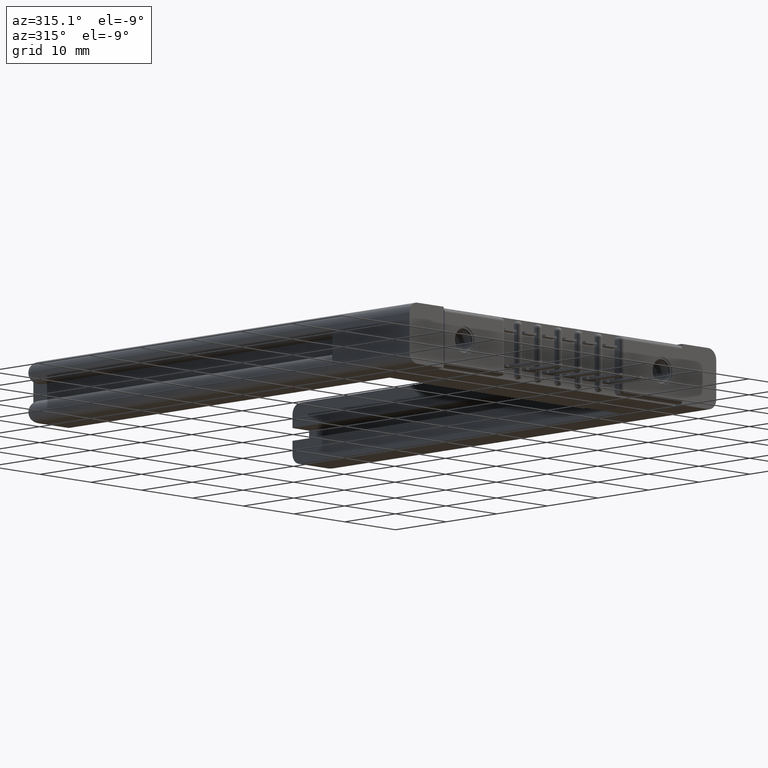
[diagram: clean part render]
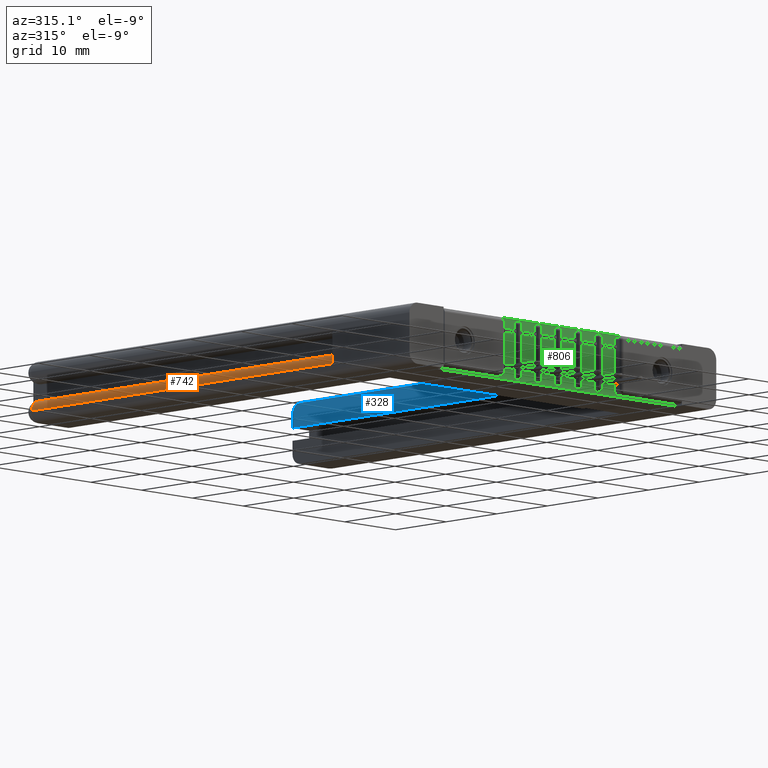
[diagram: same view with three faces highlighted in distinct colors, each labeled with its STEP entity id]
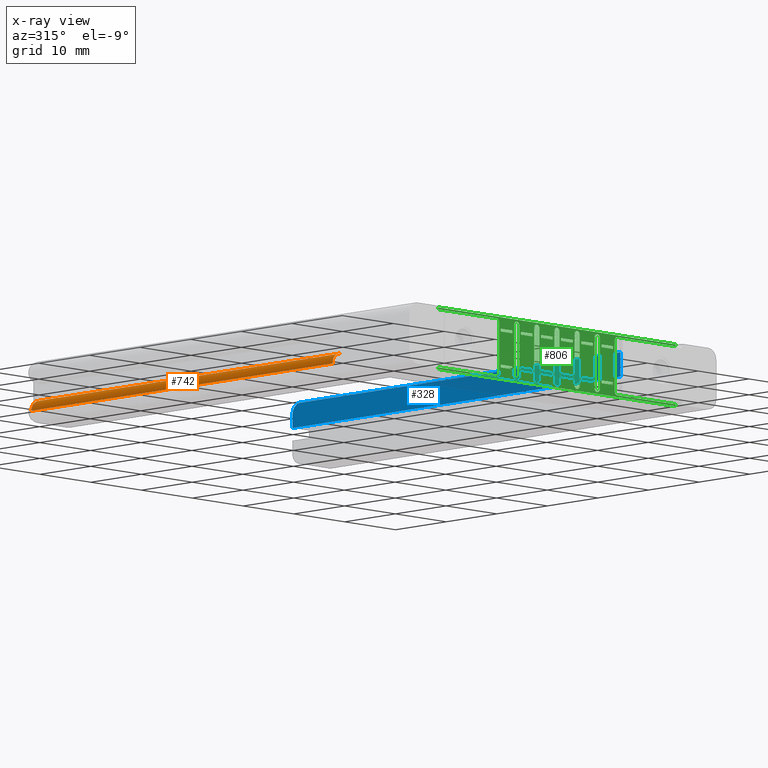
[diagram: x-ray of the same camera — body ghosted, the three highlighted faces saturated]
A machine part, auxiliary view with three faces highlighted in distinct colors.
The next image is the same camera in x-ray (body ghosted, the three faces saturated) — at least one of them is partly hidden behind the body in this view.
Their STEP definitions:

[orange] entity #742 — the highlighted cylindrical surface (edge-blend (fillet) strip) has radius 1.5621 mm, axis along (0, 1, -0).
#10 = DIRECTION ( 'NONE',  ( -7.120336040201873200E-016, -1.000000000000000000, 2.334284690065040000E-016 ) ) ;
#444 = CARTESIAN_POINT ( 'NONE',  ( 0.06150000000000015200, 0.6000000000000002000, -0.2790000000000015800 ) ) ;
#450 = EDGE_CURVE ( 'NONE', #1896, #2464, #8077, .T. ) ;
#473 = CARTESIAN_POINT ( 'NONE',  ( 0.06149796744608740400, 0.6000000000000002000, -0.2175000000000007500 ) ) ;
#695 = VECTOR ( 'NONE', #4792, 39.37007874015748100 ) ;
#742 = ADVANCED_FACE ( 'NONE', ( #7123 ), #12300, .T. ) ;
#1029 = CARTESIAN_POINT ( 'NONE',  ( 0.06150000000000370400, 2.940000000000007100, -0.2790000000000020200 ) ) ;
#1299 = VECTOR ( 'NONE', #1614, 39.37007874015748100 ) ;
#1614 = DIRECTION ( 'NONE',  ( -7.120336040201873200E-016, -1.000000000000000000, 2.334284690065040000E-016 ) ) ;
#1896 = VERTEX_POINT ( 'NONE', #8148 ) ;
#2159 = CIRCLE ( 'NONE', #9041, 0.06150000000000035300 ) ;
#2275 = CARTESIAN_POINT ( 'NONE',  ( 3.551402391763542400E-015, 2.940000000000007100, -0.2785000000000026300 ) ) ;
#2397 = DIRECTION ( 'NONE',  ( 7.120336040201873200E-016, 1.000000000000000000, -2.334284690065040000E-016 ) ) ;
#2433 = DIRECTION ( 'NONE',  ( 0.0000000000000000000, 0.0000000000000000000, -1.000000000000000000 ) ) ;
#2464 = VERTEX_POINT ( 'NONE', #2275 ) ;
#2529 = DIRECTION ( 'NONE',  ( 0.0000000000000000000, 0.0000000000000000000, 1.000000000000000000 ) ) ;
#4038 = EDGE_CURVE ( 'NONE', #6190, #2464, #4117, .T. ) ;
#4117 = LINE ( 'NONE', #12954, #695 ) ;
#4530 = ORIENTED_EDGE ( 'NONE', *, *, #9642, .F. ) ;
#4645 = CARTESIAN_POINT ( 'NONE',  ( 0.06149796744608740400, 0.6000000000000002000, -0.2175000000000007500 ) ) ;
#4792 = DIRECTION ( 'NONE',  ( 7.120336040201873200E-016, 1.000000000000000000, -2.334284690065040000E-016 ) ) ;
#5578 = VERTEX_POINT ( 'NONE', #473 ) ;
#5749 = EDGE_LOOP ( 'NONE', ( #6621, #8114, #6648, #4530 ) ) ;
#6190 = VERTEX_POINT ( 'NONE', #8802 ) ;
#6373 = AXIS2_PLACEMENT_3D ( 'NONE', #1029, #10, #10022 ) ;
#6465 = CARTESIAN_POINT ( 'NONE',  ( 0.06149796744608740400, 0.6000000000000002000, -0.2790000000000015800 ) ) ;
#6621 = ORIENTED_EDGE ( 'NONE', *, *, #450, .T. ) ;
#6648 = ORIENTED_EDGE ( 'NONE', *, *, #7016, .F. ) ;
#7016 = EDGE_CURVE ( 'NONE', #5578, #6190, #2159, .T. ) ;
#7123 = FACE_OUTER_BOUND ( 'NONE', #5749, .T. ) ;
#7324 = DIRECTION ( 'NONE',  ( -7.120336040201874200E-016, -1.000000000000000000, 2.334284690065040000E-016 ) ) ;
#8077 = CIRCLE ( 'NONE', #6373, 0.06150000000000035300 ) ;
#8114 = ORIENTED_EDGE ( 'NONE', *, *, #4038, .F. ) ;
#8148 = CARTESIAN_POINT ( 'NONE',  ( 0.06149796744609068600, 2.940000000000007100, -0.2175000000000015800 ) ) ;
#8554 = AXIS2_PLACEMENT_3D ( 'NONE', #444, #2397, #2529 ) ;
#8802 = CARTESIAN_POINT ( 'NONE',  ( 0.0000000000000000000, 0.5999999999999998700, -0.2785000000000021900 ) ) ;
#8965 = LINE ( 'NONE', #4645, #1299 ) ;
#9041 = AXIS2_PLACEMENT_3D ( 'NONE', #6465, #7324, #2433 ) ;
#9642 = EDGE_CURVE ( 'NONE', #1896, #5578, #8965, .T. ) ;
#10022 = DIRECTION ( 'NONE',  ( 0.0000000000000000000, 0.0000000000000000000, 1.000000000000000000 ) ) ;
#12300 = CYLINDRICAL_SURFACE ( 'NONE', #8554, 0.06150000000000035300 ) ;
#12954 = CARTESIAN_POINT ( 'NONE',  ( 0.0000000000000000000, 6.936332796413168700E-017, -0.2785000000000017500 ) ) ;

[blue] entity #328 — the highlighted planar face has unit normal (-1, -0, -0).
#118 = DIRECTION ( 'NONE',  ( 5.915108984173514200E-016, 1.000000000000000000, -2.334284690065039000E-016 ) ) ;
#165 = EDGE_CURVE ( 'NONE', #9585, #3451, #5269, .T. ) ;
#292 = VECTOR ( 'NONE', #118, 39.37007874015748100 ) ;
#328 = ADVANCED_FACE ( 'NONE', ( #3238 ), #4820, .T. ) ;
#379 = CARTESIAN_POINT ( 'NONE',  ( 0.2950000000000065300, 3.000000000000006700, -0.2800000000000026400 ) ) ;
#795 = CARTESIAN_POINT ( 'NONE',  ( 0.2950000000000065300, 3.000000000000006700, -0.3400000000000031900 ) ) ;
#1036 = EDGE_CURVE ( 'NONE', #5828, #12798, #5244, .T. ) ;
#1227 = ORIENTED_EDGE ( 'NONE', *, *, #3095, .F. ) ;
#1771 = DIRECTION ( 'NONE',  ( 4.510281037539688600E-017, -2.334284690065025700E-016, 1.000000000000000000 ) ) ;
#1879 = DIRECTION ( 'NONE',  ( 5.915108984173514200E-016, 1.000000000000000000, -2.334284690065039000E-016 ) ) ;
#2495 = CARTESIAN_POINT ( 'NONE',  ( 0.2950000000000062600, 0.4500000000000002300, -0.3400000000000031900 ) ) ;
#2501 = ORIENTED_EDGE ( 'NONE', *, *, #1036, .T. ) ;
#2554 = ORIENTED_EDGE ( 'NONE', *, *, #165, .T. ) ;
#2815 = EDGE_CURVE ( 'NONE', #3451, #5828, #3161, .T. ) ;
#2952 = LINE ( 'NONE', #6851, #292 ) ;
#3095 = EDGE_CURVE ( 'NONE', #9585, #12619, #8087, .T. ) ;
#3161 = CIRCLE ( 'NONE', #3448, 0.05999999999999990800 ) ;
#3238 = FACE_OUTER_BOUND ( 'NONE', #3806, .T. ) ;
#3241 = DIRECTION ( 'NONE',  ( 4.510281037539688600E-017, -2.334284690065025700E-016, 1.000000000000000000 ) ) ;
#3448 = AXIS2_PLACEMENT_3D ( 'NONE', #7857, #9741, #10873 ) ;
#3451 = VERTEX_POINT ( 'NONE', #10785 ) ;
#3504 = DIRECTION ( 'NONE',  ( 5.915108984173514200E-016, 1.000000000000000000, -2.334284690065039000E-016 ) ) ;
#3806 = EDGE_LOOP ( 'NONE', ( #2554, #11681, #2501, #8161, #1227 ) ) ;
#3849 = CARTESIAN_POINT ( 'NONE',  ( 0.2950000000000065300, 3.000000000000006700, -0.3400000000000031900 ) ) ;
#4820 = PLANE ( 'NONE',  #6535 ) ;
#5244 = LINE ( 'NONE', #795, #12126 ) ;
#5269 = LINE ( 'NONE', #9545, #10117 ) ;
#5828 = VERTEX_POINT ( 'NONE', #379 ) ;
#6520 = VECTOR ( 'NONE', #3241, 39.37007874015748100 ) ;
#6535 = AXIS2_PLACEMENT_3D ( 'NONE', #3849, #8803, #1879 ) ;
#6851 = CARTESIAN_POINT ( 'NONE',  ( 0.2950000000000062600, 0.4500000000000001200, -0.2055000000000009300 ) ) ;
#7857 = CARTESIAN_POINT ( 'NONE',  ( 0.2950000000000065300, 2.940000000000007100, -0.2800000000000026400 ) ) ;
#8087 = LINE ( 'NONE', #9140, #6520 ) ;
#8161 = ORIENTED_EDGE ( 'NONE', *, *, #11891, .F. ) ;
#8803 = DIRECTION ( 'NONE',  ( 1.000000000000000000, -5.915108984173514200E-016, 4.510281037539700900E-017 ) ) ;
#9140 = CARTESIAN_POINT ( 'NONE',  ( 0.2950000000000062600, 0.4500000000000002300, -0.3400000000000031900 ) ) ;
#9410 = CARTESIAN_POINT ( 'NONE',  ( 0.2950000000000065300, 3.000000000000006700, -0.2055000000000018200 ) ) ;
#9545 = CARTESIAN_POINT ( 'NONE',  ( 0.2950000000000065300, 3.000000000000006700, -0.3400000000000031900 ) ) ;
#9585 = VERTEX_POINT ( 'NONE', #2495 ) ;
#9741 = DIRECTION ( 'NONE',  ( 1.000000000000000000, 8.325563096230176100E-016, 4.510281037539667600E-017 ) ) ;
#10117 = VECTOR ( 'NONE', #3504, 39.37007874015748100 ) ;
#10785 = CARTESIAN_POINT ( 'NONE',  ( 0.2950000000000065300, 2.940000000000007100, -0.3400000000000031900 ) ) ;
#10873 = DIRECTION ( 'NONE',  ( 5.691349986800556800E-016, 1.000000000000000000, 0.0000000000000000000 ) ) ;
#11203 = CARTESIAN_POINT ( 'NONE',  ( 0.2950000000000062600, 0.4500000000000001200, -0.2055000000000009300 ) ) ;
#11681 = ORIENTED_EDGE ( 'NONE', *, *, #2815, .T. ) ;
#11891 = EDGE_CURVE ( 'NONE', #12619, #12798, #2952, .T. ) ;
#12126 = VECTOR ( 'NONE', #1771, 39.37007874015748100 ) ;
#12619 = VERTEX_POINT ( 'NONE', #11203 ) ;
#12798 = VERTEX_POINT ( 'NONE', #9410 ) ;

[green] entity #806 — the highlighted planar face has unit normal (0, 1, 0).
#1 = CARTESIAN_POINT ( 'NONE',  ( 1.076999999999999700, 0.05099999999999999700, -0.3329999999999999600 ) ) ;
#9 = DIRECTION ( 'NONE',  ( 0.0000000000000000000, 0.0000000000000000000, -1.000000000000000000 ) ) ;
#36 = CARTESIAN_POINT ( 'NONE',  ( 0.4860000000000004300, 0.05099999999999999700, -0.07900000000000009800 ) ) ;
#108 = LINE ( 'NONE', #11397, #751 ) ;
#112 = EDGE_CURVE ( 'NONE', #6291, #11759, #108, .T. ) ;
#122 = ORIENTED_EDGE ( 'NONE', *, *, #12040, .F. ) ;
#129 = ORIENTED_EDGE ( 'NONE', *, *, #11610, .F. ) ;
#152 = LINE ( 'NONE', #2457, #2347 ) ;
#166 = AXIS2_PLACEMENT_3D ( 'NONE', #692, #3683, #4698 ) ;
#170 = VERTEX_POINT ( 'NONE', #3547 ) ;
#184 = DIRECTION ( 'NONE',  ( 0.0000000000000000000, 0.0000000000000000000, -1.000000000000000000 ) ) ;
#239 = CARTESIAN_POINT ( 'NONE',  ( 0.4860000000000004300, 0.05099999999999999700, -0.2790000000000001400 ) ) ;
#248 = FACE_BOUND ( 'NONE', #2647, .T. ) ;
#268 = VERTEX_POINT ( 'NONE', #11525 ) ;
#272 = ORIENTED_EDGE ( 'NONE', *, *, #10517, .F. ) ;
#281 = CARTESIAN_POINT ( 'NONE',  ( 1.110000000000000500, 0.05099999999999999700, -0.06400000000000012600 ) ) ;
#293 = EDGE_CURVE ( 'NONE', #4198, #8695, #12919, .T. ) ;
#319 = ORIENTED_EDGE ( 'NONE', *, *, #12302, .F. ) ;
#381 = ORIENTED_EDGE ( 'NONE', *, *, #12283, .T. ) ;
#384 = EDGE_CURVE ( 'NONE', #7577, #8464, #8559, .T. ) ;
#389 = EDGE_CURVE ( 'NONE', #7800, #7656, #4802, .T. ) ;
#430 = VECTOR ( 'NONE', #6699, 39.37007874015748100 ) ;
#432 = CIRCLE ( 'NONE', #7219, 0.01999999999999924100 ) ;
#455 = ORIENTED_EDGE ( 'NONE', *, *, #10697, .F. ) ;
#466 = ORIENTED_EDGE ( 'NONE', *, *, #4759, .T. ) ;
#469 = EDGE_CURVE ( 'NONE', #1300, #5067, #11992, .T. ) ;
#471 = CARTESIAN_POINT ( 'NONE',  ( 1.842000000000000700, 0.05099999999999999700, -0.01000000000000006400 ) ) ;
#477 = VERTEX_POINT ( 'NONE', #12940 ) ;
#491 = VERTEX_POINT ( 'NONE', #6919 ) ;
#516 = EDGE_CURVE ( 'NONE', #2641, #6777, #6816, .T. ) ;
#522 = VERTEX_POINT ( 'NONE', #1925 ) ;
#532 = CARTESIAN_POINT ( 'NONE',  ( 0.8880000000000004600, 0.05099999999999999700, -0.2640000000000001200 ) ) ;
#540 = VERTEX_POINT ( 'NONE', #10063 ) ;
#547 = DIRECTION ( 'NONE',  ( 0.0000000000000000000, 0.0000000000000000000, -1.000000000000000000 ) ) ;
#549 = VERTEX_POINT ( 'NONE', #1106 ) ;
#567 = DIRECTION ( 'NONE',  ( 1.592914282019977800E-015, -0.0000000000000000000, -1.000000000000000000 ) ) ;
#573 = FACE_BOUND ( 'NONE', #7998, .T. ) ;
#683 = VECTOR ( 'NONE', #11384, 39.37007874015748100 ) ;
#686 = LINE ( 'NONE', #7202, #3786 ) ;
#692 = CARTESIAN_POINT ( 'NONE',  ( 1.232999999999999700, 0.05099999999999999700, -0.3130000000000007200 ) ) ;
#705 = VERTEX_POINT ( 'NONE', #7383 ) ;
#707 = LINE ( 'NONE', #3475, #2718 ) ;
#718 = LINE ( 'NONE', #12058, #1787 ) ;
#725 = VERTEX_POINT ( 'NONE', #532 ) ;
#727 = CARTESIAN_POINT ( 'NONE',  ( 0.9209999999999998200, 0.05099999999999999700, -0.3130000000000007200 ) ) ;
#739 = VERTEX_POINT ( 'NONE', #10357 ) ;
#751 = VECTOR ( 'NONE', #2292, 39.37007874015748100 ) ;
#753 = CARTESIAN_POINT ( 'NONE',  ( 1.110000000000000500, 0.05099999999999999700, -0.2640000000000001200 ) ) ;
#766 = CARTESIAN_POINT ( 'NONE',  ( 0.4730000000000003600, 0.05099999999999999700, -0.3430000000000001400 ) ) ;
#770 = AXIS2_PLACEMENT_3D ( 'NONE', #5734, #4738, #1704 ) ;
#806 = ADVANCED_FACE ( 'NONE', ( #8697, #2916, #4306, #9947, #12909, #12601, #11673, #4950, #9013, #2278, #573, #3998, #9629, #11363, #11979, #248, #10877, #7911 ), #7422, .F. ) ;
#809 = CARTESIAN_POINT ( 'NONE',  ( 1.076999999999999700, 0.05099999999999999700, -0.3130000000000007200 ) ) ;
#831 = VERTEX_POINT ( 'NONE', #3444 ) ;
#840 = DIRECTION ( 'NONE',  ( 1.000000000000000000, 0.0000000000000000000, 0.0000000000000000000 ) ) ;
#874 = EDGE_CURVE ( 'NONE', #6201, #4710, #12435, .T. ) ;
#908 = AXIS2_PLACEMENT_3D ( 'NONE', #11017, #9237, #3370 ) ;
#928 = EDGE_LOOP ( 'NONE', ( #4750, #1720, #2816, #10962 ) ) ;
#930 = DIRECTION ( 'NONE',  ( -0.0000000000000000000, 0.0000000000000000000, 1.000000000000000000 ) ) ;
#936 = VERTEX_POINT ( 'NONE', #753 ) ;
#939 = CARTESIAN_POINT ( 'NONE',  ( 0.5760000000000004000, 0.05099999999999999700, -0.06400000000000014000 ) ) ;
#946 = EDGE_LOOP ( 'NONE', ( #3340, #7335, #4592, #7561, #11044 ) ) ;
#954 = VERTEX_POINT ( 'NONE', #6645 ) ;
#1023 = ORIENTED_EDGE ( 'NONE', *, *, #2553, .F. ) ;
#1034 = LINE ( 'NONE', #10396, #7098 ) ;
#1049 = EDGE_CURVE ( 'NONE', #5605, #4606, #10867, .T. ) ;
#1062 = ORIENTED_EDGE ( 'NONE', *, *, #11629, .F. ) ;
#1070 = VECTOR ( 'NONE', #9887, 39.37007874015748100 ) ;
#1087 = DIRECTION ( 'NONE',  ( -0.0000000000000000000, 0.0000000000000000000, 1.000000000000000000 ) ) ;
#1092 = EDGE_CURVE ( 'NONE', #7584, #936, #8535, .T. ) ;
#1105 = ORIENTED_EDGE ( 'NONE', *, *, #9696, .T. ) ;
#1106 = CARTESIAN_POINT ( 'NONE',  ( 0.7980000000000003800, 0.05099999999999999700, -0.2790000000000001400 ) ) ;
#1118 = EDGE_CURVE ( 'NONE', #3965, #12755, #2904, .T. ) ;
#1130 = CARTESIAN_POINT ( 'NONE',  ( 0.7320000000000004300, 0.05099999999999999700, -0.2640000000000001200 ) ) ;
#1148 = EDGE_CURVE ( 'NONE', #4606, #954, #718, .T. ) ;
#1168 = CARTESIAN_POINT ( 'NONE',  ( 0.4530000000000003500, 0.05099999999999999700, -0.3130000000000000600 ) ) ;
#1174 = ORIENTED_EDGE ( 'NONE', *, *, #1092, .F. ) ;
#1207 = CARTESIAN_POINT ( 'NONE',  ( 1.200000000000000400, 0.05099999999999999700, -0.06399999999999989000 ) ) ;
#1252 = VERTEX_POINT ( 'NONE', #4349 ) ;
#1300 = VERTEX_POINT ( 'NONE', #5279 ) ;
#1379 = VECTOR ( 'NONE', #11364, 39.37007874015748100 ) ;
#1386 = ORIENTED_EDGE ( 'NONE', *, *, #1148, .F. ) ;
#1393 = DIRECTION ( 'NONE',  ( -0.0000000000000000000, -1.000000000000000000, 0.0000000000000000000 ) ) ;
#1451 = VECTOR ( 'NONE', #5399, 39.37007874015748100 ) ;
#1476 = DIRECTION ( 'NONE',  ( 1.000000000000000000, 0.0000000000000000000, 0.0000000000000000000 ) ) ;
#1505 = EDGE_CURVE ( 'NONE', #954, #6312, #12732, .T. ) ;
#1547 = LINE ( 'NONE', #10886, #3736 ) ;
#1551 = ORIENTED_EDGE ( 'NONE', *, *, #3530, .F. ) ;
#1562 = CARTESIAN_POINT ( 'NONE',  ( 0.0000000000000000000, 0.05099999999999999700, -0.3330000000000001300 ) ) ;
#1568 = CIRCLE ( 'NONE', #9148, 0.01999999999999924100 ) ;
#1588 = LINE ( 'NONE', #9399, #5033 ) ;
#1597 = LINE ( 'NONE', #2272, #3327 ) ;
#1605 = ORIENTED_EDGE ( 'NONE', *, *, #8238, .F. ) ;
#1630 = EDGE_CURVE ( 'NONE', #8464, #10768, #11809, .T. ) ;
#1633 = CARTESIAN_POINT ( 'NONE',  ( 1.232999999999999700, 0.05099999999999999700, -0.3130000000000007200 ) ) ;
#1634 = CARTESIAN_POINT ( 'NONE',  ( 1.110000000000000500, 0.05099999999999999700, -0.06400000000000012600 ) ) ;
#1677 = ORIENTED_EDGE ( 'NONE', *, *, #8735, .T. ) ;
#1695 = CARTESIAN_POINT ( 'NONE',  ( 0.7450000000000005500, 0.05099999999999999700, -0.3130000000000007200 ) ) ;
#1704 = DIRECTION ( 'NONE',  ( 0.0000000000000000000, 0.0000000000000000000, -1.000000000000000000 ) ) ;
#1706 = EDGE_CURVE ( 'NONE', #6201, #540, #12720, .T. ) ;
#1720 = ORIENTED_EDGE ( 'NONE', *, *, #4111, .F. ) ;
#1787 = VECTOR ( 'NONE', #6979, 39.37007874015748100 ) ;
#1802 = VECTOR ( 'NONE', #4901, 39.37007874015748100 ) ;
#1828 = CARTESIAN_POINT ( 'NONE',  ( 0.9540000000000004000, 0.05099999999999999700, -0.06400000000000012600 ) ) ;
#1851 = DIRECTION ( 'NONE',  ( -0.0000000000000000000, 0.0000000000000000000, 1.000000000000000000 ) ) ;
#1876 = ORIENTED_EDGE ( 'NONE', *, *, #516, .F. ) ;
#1882 = ORIENTED_EDGE ( 'NONE', *, *, #7536, .F. ) ;
#1925 = CARTESIAN_POINT ( 'NONE',  ( 1.266000000000000500, 0.05099999999999999700, -0.06399999999999989000 ) ) ;
#1964 = CARTESIAN_POINT ( 'NONE',  ( 1.044000000000000500, 0.05099999999999999700, -0.2640000000000001200 ) ) ;
#1965 = VERTEX_POINT ( 'NONE', #3076 ) ;
#1987 = VERTEX_POINT ( 'NONE', #4247 ) ;
#2002 = CARTESIAN_POINT ( 'NONE',  ( 1.252999999999999700, 0.05099999999999999700, -0.02999999999999927000 ) ) ;
#2020 = CARTESIAN_POINT ( 'NONE',  ( 0.6420000000000004600, 0.05099999999999999700, -0.07900000000000009800 ) ) ;
#2037 = CIRCLE ( 'NONE', #5755, 0.01999999999999924100 ) ;
#2101 = VERTEX_POINT ( 'NONE', #9455 ) ;
#2111 = CARTESIAN_POINT ( 'NONE',  ( 0.7850000000000002500, 0.05099999999999999700, -0.3130000000000007200 ) ) ;
#2120 = CARTESIAN_POINT ( 'NONE',  ( 1.842000000000000700, 0.05099999999999999700, -0.3430000000000000300 ) ) ;
#2125 = CARTESIAN_POINT ( 'NONE',  ( 0.8880000000000004600, 0.05099999999999999700, -0.06399999999999989000 ) ) ;
#2126 = VECTOR ( 'NONE', #10981, 39.37007874015748100 ) ;
#2144 = EDGE_CURVE ( 'NONE', #5022, #5061, #5686, .T. ) ;
#2171 = LINE ( 'NONE', #10205, #7627 ) ;
#2183 = VECTOR ( 'NONE', #12033, 39.37007874015748100 ) ;
#2197 = VERTEX_POINT ( 'NONE', #6868 ) ;
#2214 = VECTOR ( 'NONE', #5155, 39.37007874015748100 ) ;
#2222 = EDGE_LOOP ( 'NONE', ( #1062, #11283, #1023, #9532 ) ) ;
#2231 = CIRCLE ( 'NONE', #11073, 0.01999999999999924100 ) ;
#2236 = DIRECTION ( 'NONE',  ( -0.0000000000000000000, -1.000000000000000000, 0.0000000000000000000 ) ) ;
#2266 = ORIENTED_EDGE ( 'NONE', *, *, #3741, .F. ) ;
#2272 = CARTESIAN_POINT ( 'NONE',  ( 0.5890000000000005200, 0.05099999999999999700, -0.3430000000000001400 ) ) ;
#2278 = FACE_BOUND ( 'NONE', #11443, .T. ) ;
#2284 = CARTESIAN_POINT ( 'NONE',  ( 0.0000000000000000000, 0.05099999999999999700, 0.0000000000000000000 ) ) ;
#2290 = VERTEX_POINT ( 'NONE', #3804 ) ;
#2292 = DIRECTION ( 'NONE',  ( 1.592914282019977800E-015, -0.0000000000000000000, -1.000000000000000000 ) ) ;
#2299 = EDGE_CURVE ( 'NONE', #9898, #3919, #6768, .T. ) ;
#2307 = VERTEX_POINT ( 'NONE', #6774 ) ;
#2344 = ORIENTED_EDGE ( 'NONE', *, *, #4395, .T. ) ;
#2347 = VECTOR ( 'NONE', #3503, 39.37007874015748100 ) ;
#2382 = VECTOR ( 'NONE', #11551, 39.37007874015748100 ) ;
#2386 = CARTESIAN_POINT ( 'NONE',  ( 0.9540000000000004000, 0.05099999999999999700, -0.2640000000000001200 ) ) ;
#2420 = EDGE_CURVE ( 'NONE', #12146, #10155, #2231, .T. ) ;
#2423 = ORIENTED_EDGE ( 'NONE', *, *, #3770, .F. ) ;
#2431 = EDGE_CURVE ( 'NONE', #12684, #1965, #8016, .T. ) ;
#2443 = CARTESIAN_POINT ( 'NONE',  ( 0.7980000000000003800, 0.05099999999999999700, -0.06400000000000012600 ) ) ;
#2447 = ORIENTED_EDGE ( 'NONE', *, *, #6719, .F. ) ;
#2457 = CARTESIAN_POINT ( 'NONE',  ( 1.842000000000000700, 0.05099999999999999700, 0.0000000000000000000 ) ) ;
#2463 = ORIENTED_EDGE ( 'NONE', *, *, #3234, .T. ) ;
#2472 = ORIENTED_EDGE ( 'NONE', *, *, #10104, .T. ) ;
#2481 = CIRCLE ( 'NONE', #4336, 0.01999999999999924100 ) ;
#2502 = CARTESIAN_POINT ( 'NONE',  ( 1.266000000000000500, 0.05099999999999999700, -0.2640000000000001200 ) ) ;
#2528 = LINE ( 'NONE', #939, #9263 ) ;
#2553 = EDGE_CURVE ( 'NONE', #8367, #3965, #3948, .T. ) ;
#2601 = EDGE_CURVE ( 'NONE', #477, #4283, #11317, .T. ) ;
#2602 = LINE ( 'NONE', #2502, #4010 ) ;
#2605 = VECTOR ( 'NONE', #9186, 39.37007874015748100 ) ;
#2619 = DIRECTION ( 'NONE',  ( -0.0000000000000000000, 0.0000000000000000000, 1.000000000000000000 ) ) ;
#2641 = VERTEX_POINT ( 'NONE', #3492 ) ;
#2647 = EDGE_LOOP ( 'NONE', ( #8101, #1174, #272, #7544 ) ) ;
#2651 = EDGE_CURVE ( 'NONE', #4513, #10155, #3324, .T. ) ;
#2658 = CARTESIAN_POINT ( 'NONE',  ( 1.369000000000000400, 0.05099999999999999700, -0.03000000000000007200 ) ) ;
#2690 = LINE ( 'NONE', #4561, #10988 ) ;
#2706 = LINE ( 'NONE', #4300, #1451 ) ;
#2718 = VECTOR ( 'NONE', #567, 39.37007874015748100 ) ;
#2742 = EDGE_CURVE ( 'NONE', #1252, #4885, #4886, .T. ) ;
#2756 = DIRECTION ( 'NONE',  ( -0.0000000000000000000, -1.000000000000000000, 0.0000000000000000000 ) ) ;
#2771 = DIRECTION ( 'NONE',  ( 0.0000000000000000000, 0.0000000000000000000, 1.000000000000000000 ) ) ;
#2773 = VECTOR ( 'NONE', #5006, 39.37007874015748100 ) ;
#2790 = ORIENTED_EDGE ( 'NONE', *, *, #6166, .T. ) ;
#2807 = DIRECTION ( 'NONE',  ( 0.0000000000000000000, 0.0000000000000000000, 1.000000000000000000 ) ) ;
#2811 = CARTESIAN_POINT ( 'NONE',  ( 0.6420000000000004600, 0.05099999999999999700, -0.2790000000000001400 ) ) ;
#2816 = ORIENTED_EDGE ( 'NONE', *, *, #1630, .F. ) ;
#2820 = DIRECTION ( 'NONE',  ( -0.0000000000000000000, -1.000000000000000000, 0.0000000000000000000 ) ) ;
#2826 = ORIENTED_EDGE ( 'NONE', *, *, #11845, .F. ) ;
#2845 = CIRCLE ( 'NONE', #9223, 0.01999999999999924100 ) ;
#2863 = EDGE_LOOP ( 'NONE', ( #5093, #5476, #6579, #1386 ) ) ;
#2868 = ORIENTED_EDGE ( 'NONE', *, *, #8258, .F. ) ;
#2897 = CARTESIAN_POINT ( 'NONE',  ( 0.6089999999999998700, 0.05099999999999999700, -0.3130000000000007200 ) ) ;
#2899 = EDGE_CURVE ( 'NONE', #12322, #10944, #2528, .T. ) ;
#2904 = LINE ( 'NONE', #5897, #11350 ) ;
#2916 = FACE_BOUND ( 'NONE', #4644, .T. ) ;
#2935 = EDGE_LOOP ( 'NONE', ( #6746, #2868, #129, #2826 ) ) ;
#2939 = LINE ( 'NONE', #3688, #3704 ) ;
#2945 = LINE ( 'NONE', #7826, #1070 ) ;
#2996 = CARTESIAN_POINT ( 'NONE',  ( 1.232999999999999700, 0.05099999999999999700, -0.3329999999999999600 ) ) ;
#3038 = ORIENTED_EDGE ( 'NONE', *, *, #2144, .F. ) ;
#3052 = DIRECTION ( 'NONE',  ( 0.0000000000000000000, -1.000000000000000000, 0.0000000000000000000 ) ) ;
#3065 = CARTESIAN_POINT ( 'NONE',  ( 1.266000000000000500, 0.05099999999999999700, -0.2790000000000001400 ) ) ;
#3076 = CARTESIAN_POINT ( 'NONE',  ( 1.083812417245411700E-017, 0.05099999999999999700, -0.01000000000000006400 ) ) ;
#3078 = VERTEX_POINT ( 'NONE', #12321 ) ;
#3085 = LINE ( 'NONE', #3603, #4660 ) ;
#3114 = AXIS2_PLACEMENT_3D ( 'NONE', #8380, #11358, #9294 ) ;
#3151 = DIRECTION ( 'NONE',  ( 1.000000000000000000, 0.0000000000000000000, 0.0000000000000000000 ) ) ;
#3213 = DIRECTION ( 'NONE',  ( 1.000000000000000000, 0.0000000000000000000, 0.0000000000000000000 ) ) ;
#3234 = EDGE_CURVE ( 'NONE', #1965, #4198, #1034, .T. ) ;
#3250 = ORIENTED_EDGE ( 'NONE', *, *, #4257, .F. ) ;
#3324 = LINE ( 'NONE', #7514, #9586 ) ;
#3327 = VECTOR ( 'NONE', #5122, 39.37007874015748100 ) ;
#3340 = ORIENTED_EDGE ( 'NONE', *, *, #12361, .F. ) ;
#3370 = DIRECTION ( 'NONE',  ( 0.0000000000000000000, 0.0000000000000000000, 1.000000000000000000 ) ) ;
#3427 = DIRECTION ( 'NONE',  ( -1.000000000000000000, 0.0000000000000000000, 0.0000000000000000000 ) ) ;
#3444 = CARTESIAN_POINT ( 'NONE',  ( 0.7649999999999999000, 0.05099999999999999700, -0.3329999999999999600 ) ) ;
#3462 = ORIENTED_EDGE ( 'NONE', *, *, #3784, .T. ) ;
#3470 = EDGE_CURVE ( 'NONE', #6312, #5605, #4128, .T. ) ;
#3472 = CARTESIAN_POINT ( 'NONE',  ( 0.6420000000000004600, 0.05099999999999999700, -0.06400000000000012600 ) ) ;
#3475 = CARTESIAN_POINT ( 'NONE',  ( 1.097000000000000400, 0.05099999999999999700, -0.3430000000000001400 ) ) ;
#3492 = CARTESIAN_POINT ( 'NONE',  ( 1.044000000000000500, 0.05099999999999999700, -0.2790000000000000800 ) ) ;
#3503 = DIRECTION ( 'NONE',  ( 0.0000000000000000000, 0.0000000000000000000, -1.000000000000000000 ) ) ;
#3530 = EDGE_CURVE ( 'NONE', #4710, #7392, #6029, .T. ) ;
#3547 = CARTESIAN_POINT ( 'NONE',  ( 0.7449999999999998800, 0.05099999999999999700, -0.02999999999999927000 ) ) ;
#3549 = CARTESIAN_POINT ( 'NONE',  ( 0.9540000000000004000, 0.05099999999999999700, -0.2640000000000001200 ) ) ;
#3560 = VERTEX_POINT ( 'NONE', #1130 ) ;
#3595 = VECTOR ( 'NONE', #5435, 39.37007874015748100 ) ;
#3602 = VECTOR ( 'NONE', #9078, 39.37007874015748100 ) ;
#3603 = CARTESIAN_POINT ( 'NONE',  ( 0.5760000000000004000, 0.05099999999999999700, -0.2790000000000001400 ) ) ;
#3611 = EDGE_CURVE ( 'NONE', #10314, #7577, #11010, .T. ) ;
#3614 = VERTEX_POINT ( 'NONE', #2125 ) ;
#3683 = DIRECTION ( 'NONE',  ( -0.0000000000000000000, -1.000000000000000000, 0.0000000000000000000 ) ) ;
#3688 = CARTESIAN_POINT ( 'NONE',  ( 0.7450000000000005500, 0.05099999999999999700, -0.3430000000000001400 ) ) ;
#3689 = DIRECTION ( 'NONE',  ( 0.0000000000000000000, 0.0000000000000000000, -1.000000000000000000 ) ) ;
#3704 = VECTOR ( 'NONE', #11744, 39.37007874015748100 ) ;
#3721 = DIRECTION ( 'NONE',  ( -0.0000000000000000000, -1.000000000000000000, 0.0000000000000000000 ) ) ;
#3724 = DIRECTION ( 'NONE',  ( -0.0000000000000000000, 1.000000000000000000, -0.0000000000000000000 ) ) ;
#3733 = CARTESIAN_POINT ( 'NONE',  ( 0.5760000000000004000, 0.05099999999999999700, -0.06400000000000008500 ) ) ;
#3736 = VECTOR ( 'NONE', #9, 39.37007874015748100 ) ;
#3741 = EDGE_CURVE ( 'NONE', #7656, #2641, #12884, .T. ) ;
#3770 = EDGE_CURVE ( 'NONE', #4366, #170, #8526, .T. ) ;
#3784 = EDGE_CURVE ( 'NONE', #5022, #3919, #707, .T. ) ;
#3786 = VECTOR ( 'NONE', #3151, 39.37007874015748100 ) ;
#3804 = CARTESIAN_POINT ( 'NONE',  ( 0.7980000000000003800, 0.05099999999999999700, -0.06399999999999989000 ) ) ;
#3809 = CARTESIAN_POINT ( 'NONE',  ( 1.083812417245411700E-017, 0.05099999999999999700, -0.3330000000000001300 ) ) ;
#3836 = CARTESIAN_POINT ( 'NONE',  ( 0.5760000000000004000, 0.05099999999999999700, -0.2790000000000001400 ) ) ;
#3850 = CARTESIAN_POINT ( 'NONE',  ( 0.7320000000000004300, 0.05099999999999999700, -0.06399999999999989000 ) ) ;
#3880 = CARTESIAN_POINT ( 'NONE',  ( 1.057000000000000600, 0.05099999999999999700, -0.3430000000000001400 ) ) ;
#3919 = VERTEX_POINT ( 'NONE', #12655 ) ;
#3948 = LINE ( 'NONE', #7425, #683 ) ;
#3965 = VERTEX_POINT ( 'NONE', #6840 ) ;
#3998 = FACE_BOUND ( 'NONE', #2935, .T. ) ;
#4010 = VECTOR ( 'NONE', #10456, 39.37007874015748100 ) ;
#4023 = VECTOR ( 'NONE', #3427, 39.37007874015748100 ) ;
#4028 = CARTESIAN_POINT ( 'NONE',  ( 0.4530000000000003500, 0.05099999999999999700, -0.3330000000000001300 ) ) ;
#4054 = LINE ( 'NONE', #9323, #7330 ) ;
#4079 = CARTESIAN_POINT ( 'NONE',  ( 0.5760000000000004000, 0.05099999999999999700, -0.07900000000000009800 ) ) ;
#4087 = CARTESIAN_POINT ( 'NONE',  ( 1.356000000000000500, 0.05100000000000001800, -0.2790000000000001400 ) ) ;
#4103 = DIRECTION ( 'NONE',  ( -1.000000000000000000, 0.0000000000000000000, 1.897116662266849500E-016 ) ) ;
#4111 = EDGE_CURVE ( 'NONE', #10768, #10314, #9135, .T. ) ;
#4113 = ORIENTED_EDGE ( 'NONE', *, *, #9722, .F. ) ;
#4128 = LINE ( 'NONE', #10830, #10088 ) ;
#4149 = CARTESIAN_POINT ( 'NONE',  ( 0.5760000000000004000, 0.05099999999999999700, -0.06400000000000014000 ) ) ;
#4198 = VERTEX_POINT ( 'NONE', #5313 ) ;
#4201 = VERTEX_POINT ( 'NONE', #239 ) ;
#4233 = CARTESIAN_POINT ( 'NONE',  ( 0.5760000000000004000, 0.05099999999999999700, -0.06400000000000014000 ) ) ;
#4238 = CARTESIAN_POINT ( 'NONE',  ( 0.0000000000000000000, 0.05099999999999999700, 0.0000000000000000000 ) ) ;
#4246 = DIRECTION ( 'NONE',  ( 0.0000000000000000000, 0.0000000000000000000, 1.000000000000000000 ) ) ;
#4247 = CARTESIAN_POINT ( 'NONE',  ( 0.8880000000000004600, 0.05099999999999999700, -0.2790000000000000800 ) ) ;
#4256 = CARTESIAN_POINT ( 'NONE',  ( 1.110000000000000500, 0.05099999999999999700, -0.07900000000000009800 ) ) ;
#4257 = EDGE_CURVE ( 'NONE', #5480, #3560, #7858, .T. ) ;
#4263 = DIRECTION ( 'NONE',  ( 1.000000000000000000, 0.0000000000000000000, 0.0000000000000000000 ) ) ;
#4282 = EDGE_CURVE ( 'NONE', #10923, #5480, #2706, .T. ) ;
#4283 = VERTEX_POINT ( 'NONE', #7354 ) ;
#4300 = CARTESIAN_POINT ( 'NONE',  ( 0.5760000000000004000, 0.05099999999999999700, -0.2790000000000001400 ) ) ;
#4306 = FACE_BOUND ( 'NONE', #6766, .T. ) ;
#4325 = VECTOR ( 'NONE', #8181, 39.37007874015748100 ) ;
#4329 = ORIENTED_EDGE ( 'NONE', *, *, #6261, .F. ) ;
#4336 = AXIS2_PLACEMENT_3D ( 'NONE', #11897, #7949, #5027 ) ;
#4349 = CARTESIAN_POINT ( 'NONE',  ( 1.266000000000000500, 0.05099999999999999700, -0.2640000000000001200 ) ) ;
#4360 = EDGE_LOOP ( 'NONE', ( #6469, #381, #2423, #2472, #2447 ) ) ;
#4366 = VERTEX_POINT ( 'NONE', #6575 ) ;
#4390 = CARTESIAN_POINT ( 'NONE',  ( 0.5760000000000004000, 0.05099999999999999700, -0.06400000000000014000 ) ) ;
#4395 = EDGE_CURVE ( 'NONE', #8695, #7392, #6467, .T. ) ;
#4429 = CARTESIAN_POINT ( 'NONE',  ( 0.4730000000000003600, 0.05099999999999999700, -0.3430000000000001400 ) ) ;
#4513 = VERTEX_POINT ( 'NONE', #5662 ) ;
#4533 = VECTOR ( 'NONE', #7247, 39.37007874015748100 ) ;
#4536 = LINE ( 'NONE', #10938, #2183 ) ;
#4543 = EDGE_CURVE ( 'NONE', #7316, #11759, #10835, .T. ) ;
#4544 = CARTESIAN_POINT ( 'NONE',  ( 0.6290000000000003400, 0.05099999999999999700, -0.3130000000000007200 ) ) ;
#4555 = CARTESIAN_POINT ( 'NONE',  ( 1.266000000000000500, 0.05099999999999999700, -0.06400000000000012600 ) ) ;
#4561 = CARTESIAN_POINT ( 'NONE',  ( 1.842000000000000700, 0.05099999999999999700, -0.3330000000000001300 ) ) ;
#4583 = VECTOR ( 'NONE', #5599, 39.37007874015748100 ) ;
#4592 = ORIENTED_EDGE ( 'NONE', *, *, #12404, .F. ) ;
#4606 = VERTEX_POINT ( 'NONE', #3850 ) ;
#4628 = AXIS2_PLACEMENT_3D ( 'NONE', #6616, #7602, #10457 ) ;
#4629 = ORIENTED_EDGE ( 'NONE', *, *, #2742, .F. ) ;
#4644 = EDGE_LOOP ( 'NONE', ( #9964, #1677, #3038, #3462, #8011 ) ) ;
#4660 = VECTOR ( 'NONE', #6752, 39.37007874015748100 ) ;
#4698 = DIRECTION ( 'NONE',  ( 0.0000000000000000000, 0.0000000000000000000, 1.000000000000000000 ) ) ;
#4704 = ORIENTED_EDGE ( 'NONE', *, *, #874, .F. ) ;
#4710 = VERTEX_POINT ( 'NONE', #4028 ) ;
#4738 = DIRECTION ( 'NONE',  ( -0.0000000000000000000, 1.000000000000000000, -0.0000000000000000000 ) ) ;
#4740 = CARTESIAN_POINT ( 'NONE',  ( 1.389000000000000500, 0.05099999999999999700, -0.3130000000000000600 ) ) ;
#4750 = ORIENTED_EDGE ( 'NONE', *, *, #3611, .F. ) ;
#4759 = EDGE_CURVE ( 'NONE', #739, #9818, #1597, .T. ) ;
#4772 = DIRECTION ( 'NONE',  ( 1.000000000000000000, 0.0000000000000000000, 0.0000000000000000000 ) ) ;
#4802 = LINE ( 'NONE', #1828, #11391 ) ;
#4822 = EDGE_CURVE ( 'NONE', #7364, #11618, #686, .T. ) ;
#4859 = EDGE_CURVE ( 'NONE', #9366, #12322, #12394, .T. ) ;
#4862 = DIRECTION ( 'NONE',  ( 0.0000000000000000000, 0.0000000000000000000, 1.000000000000000000 ) ) ;
#4877 = LINE ( 'NONE', #7229, #2214 ) ;
#4885 = VERTEX_POINT ( 'NONE', #3065 ) ;
#4886 = LINE ( 'NONE', #4555, #2382 ) ;
#4888 = EDGE_CURVE ( 'NONE', #2290, #7364, #9265, .T. ) ;
#4890 = VECTOR ( 'NONE', #9438, 39.37007874015748100 ) ;
#4893 = DIRECTION ( 'NONE',  ( 1.000000000000000000, 0.0000000000000000000, 0.0000000000000000000 ) ) ;
#4896 = DIRECTION ( 'NONE',  ( 1.000000000000000000, 0.0000000000000000000, 0.0000000000000000000 ) ) ;
#4901 = DIRECTION ( 'NONE',  ( -1.991142852524972300E-015, 0.0000000000000000000, 1.000000000000000000 ) ) ;
#4913 = EDGE_CURVE ( 'NONE', #10594, #2101, #1588, .T. ) ;
#4950 = FACE_BOUND ( 'NONE', #6939, .T. ) ;
#4957 = LINE ( 'NONE', #3880, #1802 ) ;
#4964 = VECTOR ( 'NONE', #547, 39.37007874015748100 ) ;
#5001 = LINE ( 'NONE', #9320, #4533 ) ;
#5006 = DIRECTION ( 'NONE',  ( -1.000000000000000000, 0.0000000000000000000, 1.897116662266849500E-016 ) ) ;
#5015 = VECTOR ( 'NONE', #4772, 39.37007874015748100 ) ;
#5016 = DIRECTION ( 'NONE',  ( -0.0000000000000000000, 0.0000000000000000000, 1.000000000000000000 ) ) ;
#5022 = VERTEX_POINT ( 'NONE', #6685 ) ;
#5027 = DIRECTION ( 'NONE',  ( 0.0000000000000000000, 0.0000000000000000000, 1.000000000000000000 ) ) ;
#5033 = VECTOR ( 'NONE', #10358, 39.37007874015748100 ) ;
#5055 = CARTESIAN_POINT ( 'NONE',  ( 1.356000000000000500, 0.05100000000000001800, -0.06399999999999989000 ) ) ;
#5061 = VERTEX_POINT ( 'NONE', #5509 ) ;
#5067 = VERTEX_POINT ( 'NONE', #2658 ) ;
#5093 = ORIENTED_EDGE ( 'NONE', *, *, #1049, .F. ) ;
#5122 = DIRECTION ( 'NONE',  ( -1.991142852524972300E-015, 0.0000000000000000000, 1.000000000000000000 ) ) ;
#5155 = DIRECTION ( 'NONE',  ( -1.000000000000000000, 0.0000000000000000000, 1.897116662266849500E-016 ) ) ;
#5194 = DIRECTION ( 'NONE',  ( -0.0000000000000000000, -1.000000000000000000, 0.0000000000000000000 ) ) ;
#5224 = VECTOR ( 'NONE', #3213, 39.37007874015748100 ) ;
#5229 = ORIENTED_EDGE ( 'NONE', *, *, #469, .T. ) ;
#5279 = CARTESIAN_POINT ( 'NONE',  ( 1.369000000000000400, 0.05099999999999999700, -0.3130000000000000600 ) ) ;
#5284 = DIRECTION ( 'NONE',  ( 1.592914282019977800E-015, -0.0000000000000000000, -1.000000000000000000 ) ) ;
#5292 = LINE ( 'NONE', #5932, #11244 ) ;
#5298 = LINE ( 'NONE', #12882, #10778 ) ;
#5307 = ORIENTED_EDGE ( 'NONE', *, *, #7981, .F. ) ;
#5313 = CARTESIAN_POINT ( 'NONE',  ( 0.4530000000000003500, 0.05099999999999999700, -0.01000000000000006400 ) ) ;
#5325 = VECTOR ( 'NONE', #10373, 39.37007874015748100 ) ;
#5337 = DIRECTION ( 'NONE',  ( 0.0000000000000000000, 1.000000000000000000, -0.0000000000000000000 ) ) ;
#5350 = CARTESIAN_POINT ( 'NONE',  ( 1.044000000000000500, 0.05099999999999999700, -0.07900000000000009800 ) ) ;
#5360 = VERTEX_POINT ( 'NONE', #2002 ) ;
#5372 = VECTOR ( 'NONE', #8547, 39.37007874015748100 ) ;
#5383 = VECTOR ( 'NONE', #7004, 39.37007874015748100 ) ;
#5393 = DIRECTION ( 'NONE',  ( -0.0000000000000000000, -1.000000000000000000, 0.0000000000000000000 ) ) ;
#5399 = DIRECTION ( 'NONE',  ( 1.000000000000000000, 0.0000000000000000000, 0.0000000000000000000 ) ) ;
#5409 = CARTESIAN_POINT ( 'NONE',  ( 0.7320000000000004300, 0.05099999999999999700, -0.07900000000000009800 ) ) ;
#5415 = EDGE_LOOP ( 'NONE', ( #10061, #9748, #1876, #2266 ) ) ;
#5427 = ORIENTED_EDGE ( 'NONE', *, *, #1706, .T. ) ;
#5431 = EDGE_CURVE ( 'NONE', #9083, #8367, #4877, .T. ) ;
#5435 = DIRECTION ( 'NONE',  ( -1.000000000000000000, -0.0000000000000000000, -7.017285087388212900E-023 ) ) ;
#5457 = LINE ( 'NONE', #10626, #11085 ) ;
#5475 = LINE ( 'NONE', #281, #11435 ) ;
#5476 = ORIENTED_EDGE ( 'NONE', *, *, #3470, .F. ) ;
#5480 = VERTEX_POINT ( 'NONE', #9170 ) ;
#5482 = CIRCLE ( 'NONE', #3114, 0.02000000000000007000 ) ;
#5504 = VECTOR ( 'NONE', #5284, 39.37007874015748100 ) ;
#5509 = CARTESIAN_POINT ( 'NONE',  ( 1.056999999999999700, 0.05099999999999999700, -0.02999999999999927000 ) ) ;
#5591 = ORIENTED_EDGE ( 'NONE', *, *, #2420, .F. ) ;
#5599 = DIRECTION ( 'NONE',  ( -1.991142852524972300E-015, 0.0000000000000000000, 1.000000000000000000 ) ) ;
#5605 = VERTEX_POINT ( 'NONE', #5409 ) ;
#5610 = LINE ( 'NONE', #3836, #6857 ) ;
#5644 = CARTESIAN_POINT ( 'NONE',  ( 1.213000000000000500, 0.05099999999999999700, -0.3430000000000001400 ) ) ;
#5655 = CARTESIAN_POINT ( 'NONE',  ( 0.6420000000000004600, 0.05099999999999999700, -0.06400000000000012600 ) ) ;
#5662 = CARTESIAN_POINT ( 'NONE',  ( 0.6289999999999997800, 0.05099999999999999700, -0.02999999999999927000 ) ) ;
#5686 = CIRCLE ( 'NONE', #4628, 0.01999999999999924100 ) ;
#5696 = DIRECTION ( 'NONE',  ( 0.0000000000000000000, 0.0000000000000000000, -1.000000000000000000 ) ) ;
#5733 = VECTOR ( 'NONE', #9697, 39.37007874015748100 ) ;
#5734 = CARTESIAN_POINT ( 'NONE',  ( 0.4530000000000003500, 0.05099999999999999700, -0.03000000000000007200 ) ) ;
#5755 = AXIS2_PLACEMENT_3D ( 'NONE', #8716, #2756, #2807 ) ;
#5865 = CARTESIAN_POINT ( 'NONE',  ( 0.9409999999999997300, 0.05099999999999999700, -0.02999999999999927000 ) ) ;
#5883 = EDGE_CURVE ( 'NONE', #936, #9070, #5475, .T. ) ;
#5895 = LINE ( 'NONE', #5655, #4964 ) ;
#5897 = CARTESIAN_POINT ( 'NONE',  ( 0.9540000000000004000, 0.05099999999999999700, -0.07900000000000009800 ) ) ;
#5912 = CARTESIAN_POINT ( 'NONE',  ( 1.044000000000000500, 0.05099999999999999700, -0.06400000000000014000 ) ) ;
#5932 = CARTESIAN_POINT ( 'NONE',  ( 1.044000000000000500, 0.05099999999999999700, -0.06400000000000014000 ) ) ;
#5939 = LINE ( 'NONE', #8750, #10308 ) ;
#5945 = ORIENTED_EDGE ( 'NONE', *, *, #10543, .F. ) ;
#5946 = VERTEX_POINT ( 'NONE', #11353 ) ;
#5950 = AXIS2_PLACEMENT_3D ( 'NONE', #11469, #5337, #6435 ) ;
#5963 = VECTOR ( 'NONE', #1087, 39.37007874015748100 ) ;
#5966 = ORIENTED_EDGE ( 'NONE', *, *, #293, .T. ) ;
#5982 = EDGE_CURVE ( 'NONE', #11703, #12684, #10324, .T. ) ;
#6005 = EDGE_CURVE ( 'NONE', #11618, #3614, #8130, .T. ) ;
#6029 = CIRCLE ( 'NONE', #6726, 0.02000000000000005900 ) ;
#6032 = DIRECTION ( 'NONE',  ( 1.000000000000000000, 0.0000000000000000000, 0.0000000000000000000 ) ) ;
#6034 = EDGE_CURVE ( 'NONE', #9891, #7605, #152, .T. ) ;
#6051 = ORIENTED_EDGE ( 'NONE', *, *, #112, .T. ) ;
#6091 = EDGE_CURVE ( 'NONE', #6291, #2101, #2037, .T. ) ;
#6149 = VECTOR ( 'NONE', #184, 39.37007874015748100 ) ;
#6166 = EDGE_CURVE ( 'NONE', #540, #7605, #7031, .T. ) ;
#6169 = VECTOR ( 'NONE', #3689, 39.37007874015748100 ) ;
#6201 = VERTEX_POINT ( 'NONE', #3809 ) ;
#6204 = VERTEX_POINT ( 'NONE', #11689 ) ;
#6237 = DIRECTION ( 'NONE',  ( -1.000000000000000000, 0.0000000000000000000, 1.897116662266849500E-016 ) ) ;
#6244 = CARTESIAN_POINT ( 'NONE',  ( 1.266000000000000500, 0.05099999999999999700, -0.07900000000000009800 ) ) ;
#6249 = CARTESIAN_POINT ( 'NONE',  ( 0.5760000000000004000, 0.05099999999999999700, -0.2640000000000001200 ) ) ;
#6260 = DIRECTION ( 'NONE',  ( -0.0000000000000000000, 0.0000000000000000000, 1.000000000000000000 ) ) ;
#6261 = EDGE_CURVE ( 'NONE', #10944, #12022, #1547, .T. ) ;
#6291 = VERTEX_POINT ( 'NONE', #5865 ) ;
#6312 = VERTEX_POINT ( 'NONE', #2020 ) ;
#6314 = EDGE_CURVE ( 'NONE', #5360, #7039, #4536, .T. ) ;
#6326 = DIRECTION ( 'NONE',  ( -0.0000000000000000000, 0.0000000000000000000, 1.000000000000000000 ) ) ;
#6332 = EDGE_CURVE ( 'NONE', #268, #9898, #12188, .T. ) ;
#6388 = EDGE_CURVE ( 'NONE', #522, #12049, #4054, .T. ) ;
#6435 = DIRECTION ( 'NONE',  ( 0.0000000000000000000, 0.0000000000000000000, 1.000000000000000000 ) ) ;
#6467 = LINE ( 'NONE', #4429, #5372 ) ;
#6469 = ORIENTED_EDGE ( 'NONE', *, *, #10121, .F. ) ;
#6514 = CARTESIAN_POINT ( 'NONE',  ( 1.110000000000000500, 0.05099999999999999700, -0.06399999999999989000 ) ) ;
#6532 = LINE ( 'NONE', #2386, #4023 ) ;
#6538 = CIRCLE ( 'NONE', #9452, 0.02000000000000005900 ) ;
#6550 = EDGE_CURVE ( 'NONE', #9070, #11287, #5939, .T. ) ;
#6575 = CARTESIAN_POINT ( 'NONE',  ( 0.7849999999999997000, 0.05099999999999999700, -0.02999999999999927000 ) ) ;
#6579 = ORIENTED_EDGE ( 'NONE', *, *, #1505, .F. ) ;
#6586 = LINE ( 'NONE', #8155, #3602 ) ;
#6616 = CARTESIAN_POINT ( 'NONE',  ( 1.076999999999999700, 0.05099999999999999700, -0.02999999999999930500 ) ) ;
#6645 = CARTESIAN_POINT ( 'NONE',  ( 0.6420000000000004600, 0.05099999999999999700, -0.06399999999999989000 ) ) ;
#6685 = CARTESIAN_POINT ( 'NONE',  ( 1.096999999999999800, 0.05099999999999999700, -0.02999999999999927000 ) ) ;
#6699 = DIRECTION ( 'NONE',  ( -1.000000000000000000, 0.0000000000000000000, 1.897116662266849500E-016 ) ) ;
#6719 = EDGE_CURVE ( 'NONE', #831, #12534, #2481, .T. ) ;
#6726 = AXIS2_PLACEMENT_3D ( 'NONE', #1168, #3052, #10169 ) ;
#6746 = ORIENTED_EDGE ( 'NONE', *, *, #8320, .F. ) ;
#6752 = DIRECTION ( 'NONE',  ( 1.000000000000000000, 0.0000000000000000000, 0.0000000000000000000 ) ) ;
#6765 = EDGE_CURVE ( 'NONE', #491, #6892, #5298, .T. ) ;
#6766 = EDGE_LOOP ( 'NONE', ( #10311, #9913, #12348, #6051, #12319 ) ) ;
#6768 = CIRCLE ( 'NONE', #8654, 0.01999999999999924100 ) ;
#6773 = CARTESIAN_POINT ( 'NONE',  ( 0.6089999999999998700, 0.05099999999999999700, -0.02999999999999930500 ) ) ;
#6774 = CARTESIAN_POINT ( 'NONE',  ( 0.7980000000000003800, 0.05099999999999999700, -0.2640000000000001200 ) ) ;
#6777 = VERTEX_POINT ( 'NONE', #1964 ) ;
#6816 = LINE ( 'NONE', #5912, #10731 ) ;
#6834 = DIRECTION ( 'NONE',  ( 0.0000000000000000000, 0.0000000000000000000, 1.000000000000000000 ) ) ;
#6840 = CARTESIAN_POINT ( 'NONE',  ( 0.9540000000000004000, 0.05099999999999999700, -0.07900000000000009800 ) ) ;
#6843 = DIRECTION ( 'NONE',  ( -0.0000000000000000000, -1.000000000000000000, 0.0000000000000000000 ) ) ;
#6857 = VECTOR ( 'NONE', #4896, 39.37007874015748100 ) ;
#6868 = CARTESIAN_POINT ( 'NONE',  ( 1.842000000000000700, 0.05099999999999999700, -0.01000000000000006400 ) ) ;
#6892 = VERTEX_POINT ( 'NONE', #6249 ) ;
#6919 = CARTESIAN_POINT ( 'NONE',  ( 0.5760000000000004000, 0.05099999999999999700, -0.2790000000000000800 ) ) ;
#6933 = CARTESIAN_POINT ( 'NONE',  ( 0.8880000000000004600, 0.05099999999999999700, -0.07900000000000009800 ) ) ;
#6934 = CARTESIAN_POINT ( 'NONE',  ( 0.4730000000000004800, 0.05099999999999999700, -0.3130000000000000600 ) ) ;
#6939 = EDGE_LOOP ( 'NONE', ( #1605, #11110, #12673, #12212 ) ) ;
#6955 = VECTOR ( 'NONE', #8782, 39.37007874015748100 ) ;
#6979 = DIRECTION ( 'NONE',  ( -1.000000000000000000, 0.0000000000000000000, 1.897116662266849500E-016 ) ) ;
#7004 = DIRECTION ( 'NONE',  ( 0.0000000000000000000, 0.0000000000000000000, -1.000000000000000000 ) ) ;
#7031 = LINE ( 'NONE', #766, #5015 ) ;
#7039 = VERTEX_POINT ( 'NONE', #8351 ) ;
#7054 = CARTESIAN_POINT ( 'NONE',  ( 0.9010000000000004700, 0.05099999999999999700, -0.3130000000000007200 ) ) ;
#7058 = ORIENTED_EDGE ( 'NONE', *, *, #2651, .T. ) ;
#7093 = CARTESIAN_POINT ( 'NONE',  ( 1.200000000000000400, 0.05099999999999999700, -0.2640000000000001200 ) ) ;
#7098 = VECTOR ( 'NONE', #1476, 39.37007874015748100 ) ;
#7202 = CARTESIAN_POINT ( 'NONE',  ( 0.7980000000000003800, 0.05099999999999999700, -0.07900000000000009800 ) ) ;
#7219 = AXIS2_PLACEMENT_3D ( 'NONE', #12819, #2820, #6834 ) ;
#7229 = CARTESIAN_POINT ( 'NONE',  ( 0.5760000000000004000, 0.05099999999999999700, -0.06400000000000014000 ) ) ;
#7247 = DIRECTION ( 'NONE',  ( 1.000000000000000000, 0.0000000000000000000, 0.0000000000000000000 ) ) ;
#7248 = VECTOR ( 'NONE', #4263, 39.37007874015748100 ) ;
#7264 = CARTESIAN_POINT ( 'NONE',  ( 1.110000000000000500, 0.05099999999999999700, -0.2790000000000001400 ) ) ;
#7271 = CIRCLE ( 'NONE', #10329, 0.01999999999999924100 ) ;
#7286 = CIRCLE ( 'NONE', #9910, 0.01999999999999924100 ) ;
#7291 = CARTESIAN_POINT ( 'NONE',  ( 0.7980000000000003800, 0.05099999999999999700, -0.06400000000000012600 ) ) ;
#7316 = VERTEX_POINT ( 'NONE', #10825 ) ;
#7330 = VECTOR ( 'NONE', #11387, 39.37007874015748100 ) ;
#7335 = ORIENTED_EDGE ( 'NONE', *, *, #2601, .T. ) ;
#7338 = EDGE_CURVE ( 'NONE', #6892, #11587, #12797, .T. ) ;
#7354 = CARTESIAN_POINT ( 'NONE',  ( 1.212999999999999900, 0.05099999999999999700, -0.02999999999999927000 ) ) ;
#7364 = VERTEX_POINT ( 'NONE', #8912 ) ;
#7368 = ORIENTED_EDGE ( 'NONE', *, *, #12740, .F. ) ;
#7373 = CARTESIAN_POINT ( 'NONE',  ( 0.7649999999999999000, 0.05099999999999999700, -0.3130000000000007200 ) ) ;
#7383 = CARTESIAN_POINT ( 'NONE',  ( 1.356000000000000300, 0.05099999999999999700, -0.2640000000000001200 ) ) ;
#7392 = VERTEX_POINT ( 'NONE', #6934 ) ;
#7405 = VERTEX_POINT ( 'NONE', #4087 ) ;
#7422 = PLANE ( 'NONE',  #5950 ) ;
#7425 = CARTESIAN_POINT ( 'NONE',  ( 0.9540000000000004000, 0.05099999999999999700, -0.06400000000000012600 ) ) ;
#7437 = CARTESIAN_POINT ( 'NONE',  ( 0.8880000000000004600, 0.05099999999999999700, -0.06400000000000014000 ) ) ;
#7514 = CARTESIAN_POINT ( 'NONE',  ( 0.6290000000000003400, 0.05099999999999999700, -0.3430000000000001400 ) ) ;
#7536 = EDGE_CURVE ( 'NONE', #12022, #9366, #2171, .T. ) ;
#7544 = ORIENTED_EDGE ( 'NONE', *, *, #6550, .F. ) ;
#7561 = ORIENTED_EDGE ( 'NONE', *, *, #6314, .T. ) ;
#7577 = VERTEX_POINT ( 'NONE', #1207 ) ;
#7584 = VERTEX_POINT ( 'NONE', #7093 ) ;
#7602 = DIRECTION ( 'NONE',  ( -0.0000000000000000000, -1.000000000000000000, 0.0000000000000000000 ) ) ;
#7605 = VERTEX_POINT ( 'NONE', #2120 ) ;
#7627 = VECTOR ( 'NONE', #8154, 39.37007874015748100 ) ;
#7628 = ORIENTED_EDGE ( 'NONE', *, *, #2431, .T. ) ;
#7656 = VERTEX_POINT ( 'NONE', #11484 ) ;
#7688 = DIRECTION ( 'NONE',  ( 0.0000000000000000000, 0.0000000000000000000, -1.000000000000000000 ) ) ;
#7745 = DIRECTION ( 'NONE',  ( -1.000000000000000000, 0.0000000000000000000, 0.0000000000000000000 ) ) ;
#7776 = DIRECTION ( 'NONE',  ( 0.0000000000000000000, 0.0000000000000000000, 1.000000000000000000 ) ) ;
#7783 = ORIENTED_EDGE ( 'NONE', *, *, #12822, .F. ) ;
#7800 = VERTEX_POINT ( 'NONE', #3549 ) ;
#7826 = CARTESIAN_POINT ( 'NONE',  ( 1.842000000000000700, 0.05099999999999999700, 0.0000000000000000000 ) ) ;
#7858 = LINE ( 'NONE', #11398, #8030 ) ;
#7863 = ORIENTED_EDGE ( 'NONE', *, *, #12915, .F. ) ;
#7911 = FACE_BOUND ( 'NONE', #9955, .T. ) ;
#7927 = EDGE_CURVE ( 'NONE', #6204, #1300, #6538, .T. ) ;
#7929 = LINE ( 'NONE', #11296, #2605 ) ;
#7949 = DIRECTION ( 'NONE',  ( -0.0000000000000000000, -1.000000000000000000, 0.0000000000000000000 ) ) ;
#7981 = EDGE_CURVE ( 'NONE', #11703, #2197, #2945, .T. ) ;
#7998 = EDGE_LOOP ( 'NONE', ( #10624, #11751, #12561, #455 ) ) ;
#8011 = ORIENTED_EDGE ( 'NONE', *, *, #2299, .F. ) ;
#8016 = LINE ( 'NONE', #4238, #6149 ) ;
#8030 = VECTOR ( 'NONE', #6326, 39.37007874015748100 ) ;
#8101 = ORIENTED_EDGE ( 'NONE', *, *, #5883, .F. ) ;
#8130 = LINE ( 'NONE', #7437, #5325 ) ;
#8154 = DIRECTION ( 'NONE',  ( 1.000000000000000000, 0.0000000000000000000, 0.0000000000000000000 ) ) ;
#8155 = CARTESIAN_POINT ( 'NONE',  ( 1.200000000000000400, 0.05099999999999999700, -0.06400000000000014000 ) ) ;
#8158 = EDGE_CURVE ( 'NONE', #9439, #522, #8416, .T. ) ;
#8181 = DIRECTION ( 'NONE',  ( -1.000000000000000000, 0.0000000000000000000, 0.0000000000000000000 ) ) ;
#8238 = EDGE_CURVE ( 'NONE', #11587, #4201, #7929, .T. ) ;
#8258 = EDGE_CURVE ( 'NONE', #725, #2307, #11542, .T. ) ;
#8320 = EDGE_CURVE ( 'NONE', #2307, #549, #12928, .T. ) ;
#8336 = VECTOR ( 'NONE', #2619, 39.37007874015748100 ) ;
#8351 = CARTESIAN_POINT ( 'NONE',  ( 1.253000000000000300, 0.05099999999999999700, -0.3130000000000007200 ) ) ;
#8367 = VERTEX_POINT ( 'NONE', #10535 ) ;
#8374 = VECTOR ( 'NONE', #10920, 39.37007874015748100 ) ;
#8380 = CARTESIAN_POINT ( 'NONE',  ( 1.389000000000000500, 0.05099999999999999700, -0.03000000000000007200 ) ) ;
#8416 = LINE ( 'NONE', #4149, #2773 ) ;
#8464 = VERTEX_POINT ( 'NONE', #6514 ) ;
#8476 = CARTESIAN_POINT ( 'NONE',  ( 0.5760000000000004000, 0.05099999999999999700, -0.2790000000000001400 ) ) ;
#8526 = CIRCLE ( 'NONE', #10084, 0.01999999999999924100 ) ;
#8535 = LINE ( 'NONE', #8967, #8374 ) ;
#8547 = DIRECTION ( 'NONE',  ( 1.592914282019977800E-015, -0.0000000000000000000, -1.000000000000000000 ) ) ;
#8551 = EDGE_CURVE ( 'NONE', #12049, #3078, #8568, .T. ) ;
#8559 = LINE ( 'NONE', #8845, #430 ) ;
#8568 = LINE ( 'NONE', #9654, #5733 ) ;
#8621 = CARTESIAN_POINT ( 'NONE',  ( 0.4860000000000004300, 0.05099999999999999700, -0.2640000000000001200 ) ) ;
#8624 = LINE ( 'NONE', #5055, #5963 ) ;
#8654 = AXIS2_PLACEMENT_3D ( 'NONE', #809, #12682, #4862 ) ;
#8671 = ORIENTED_EDGE ( 'NONE', *, *, #7927, .T. ) ;
#8695 = VERTEX_POINT ( 'NONE', #11806 ) ;
#8697 = FACE_BOUND ( 'NONE', #946, .T. ) ;
#8716 = CARTESIAN_POINT ( 'NONE',  ( 0.9209999999999998200, 0.05099999999999999700, -0.02999999999999930500 ) ) ;
#8717 = VECTOR ( 'NONE', #10274, 39.37007874015748100 ) ;
#8723 = CARTESIAN_POINT ( 'NONE',  ( 0.4860000000000004300, 0.05099999999999999700, -0.06400000000000008500 ) ) ;
#8735 = EDGE_CURVE ( 'NONE', #268, #5061, #4957, .T. ) ;
#8750 = CARTESIAN_POINT ( 'NONE',  ( 0.5760000000000004000, 0.05099999999999999700, -0.2790000000000001400 ) ) ;
#8782 = DIRECTION ( 'NONE',  ( -0.0000000000000000000, 0.0000000000000000000, 1.000000000000000000 ) ) ;
#8845 = CARTESIAN_POINT ( 'NONE',  ( 0.5760000000000004000, 0.05099999999999999700, -0.06400000000000014000 ) ) ;
#8912 = CARTESIAN_POINT ( 'NONE',  ( 0.7980000000000003800, 0.05099999999999999700, -0.07900000000000009800 ) ) ;
#8913 = ORIENTED_EDGE ( 'NONE', *, *, #8551, .F. ) ;
#8967 = CARTESIAN_POINT ( 'NONE',  ( 1.110000000000000500, 0.05099999999999999700, -0.2640000000000001200 ) ) ;
#9013 = FACE_BOUND ( 'NONE', #2863, .T. ) ;
#9070 = VERTEX_POINT ( 'NONE', #7264 ) ;
#9078 = DIRECTION ( 'NONE',  ( -0.0000000000000000000, 0.0000000000000000000, 1.000000000000000000 ) ) ;
#9083 = VERTEX_POINT ( 'NONE', #12730 ) ;
#9108 = EDGE_CURVE ( 'NONE', #9221, #7039, #9162, .T. ) ;
#9135 = LINE ( 'NONE', #12128, #5224 ) ;
#9148 = AXIS2_PLACEMENT_3D ( 'NONE', #10912, #6843, #11926 ) ;
#9162 = CIRCLE ( 'NONE', #166, 0.01999999999999924100 ) ;
#9170 = CARTESIAN_POINT ( 'NONE',  ( 0.7320000000000004300, 0.05099999999999999700, -0.2790000000000000800 ) ) ;
#9186 = DIRECTION ( 'NONE',  ( 0.0000000000000000000, 0.0000000000000000000, -1.000000000000000000 ) ) ;
#9198 = ORIENTED_EDGE ( 'NONE', *, *, #6388, .F. ) ;
#9210 = CARTESIAN_POINT ( 'NONE',  ( 0.6420000000000004600, 0.05099999999999999700, -0.2640000000000001200 ) ) ;
#9221 = VERTEX_POINT ( 'NONE', #2996 ) ;
#9223 = AXIS2_PLACEMENT_3D ( 'NONE', #7373, #1393, #12405 ) ;
#9237 = DIRECTION ( 'NONE',  ( -0.0000000000000000000, -1.000000000000000000, 0.0000000000000000000 ) ) ;
#9263 = VECTOR ( 'NONE', #4103, 39.37007874015748100 ) ;
#9265 = LINE ( 'NONE', #2443, #4890 ) ;
#9276 = VECTOR ( 'NONE', #6260, 39.37007874015748100 ) ;
#9294 = DIRECTION ( 'NONE',  ( 0.0000000000000000000, 0.0000000000000000000, -1.000000000000000000 ) ) ;
#9320 = CARTESIAN_POINT ( 'NONE',  ( 0.5760000000000004000, 0.05099999999999999700, -0.2790000000000001400 ) ) ;
#9323 = CARTESIAN_POINT ( 'NONE',  ( 1.266000000000000500, 0.05099999999999999700, -0.06400000000000012600 ) ) ;
#9366 = VERTEX_POINT ( 'NONE', #4079 ) ;
#9399 = CARTESIAN_POINT ( 'NONE',  ( 0.9010000000000005800, 0.05099999999999999700, -0.3430000000000001400 ) ) ;
#9438 = DIRECTION ( 'NONE',  ( 0.0000000000000000000, 0.0000000000000000000, -1.000000000000000000 ) ) ;
#9439 = VERTEX_POINT ( 'NONE', #11201 ) ;
#9452 = AXIS2_PLACEMENT_3D ( 'NONE', #4740, #3724, #7688 ) ;
#9455 = CARTESIAN_POINT ( 'NONE',  ( 0.9009999999999998000, 0.05099999999999999700, -0.02999999999999927000 ) ) ;
#9506 = ORIENTED_EDGE ( 'NONE', *, *, #4859, .F. ) ;
#9532 = ORIENTED_EDGE ( 'NONE', *, *, #5431, .F. ) ;
#9544 = CARTESIAN_POINT ( 'NONE',  ( 0.4729999999999998600, 0.05099999999999999700, 0.0000000000000000000 ) ) ;
#9580 = EDGE_LOOP ( 'NONE', ( #5945, #8913, #9198, #10071 ) ) ;
#9583 = DIRECTION ( 'NONE',  ( -1.000000000000000000, 0.0000000000000000000, 0.0000000000000000000 ) ) ;
#9586 = VECTOR ( 'NONE', #9616, 39.37007874015748100 ) ;
#9616 = DIRECTION ( 'NONE',  ( 1.592914282019977800E-015, -0.0000000000000000000, -1.000000000000000000 ) ) ;
#9629 = FACE_BOUND ( 'NONE', #2222, .T. ) ;
#9652 = CIRCLE ( 'NONE', #9657, 0.01999999999999924100 ) ;
#9654 = CARTESIAN_POINT ( 'NONE',  ( 1.266000000000000500, 0.05099999999999999700, -0.07900000000000009800 ) ) ;
#9657 = AXIS2_PLACEMENT_3D ( 'NONE', #1633, #12649, #2771 ) ;
#9696 = EDGE_CURVE ( 'NONE', #9891, #6204, #2690, .T. ) ;
#9697 = DIRECTION ( 'NONE',  ( 1.000000000000000000, 0.0000000000000000000, 0.0000000000000000000 ) ) ;
#9722 = EDGE_CURVE ( 'NONE', #7405, #705, #10820, .T. ) ;
#9748 = ORIENTED_EDGE ( 'NONE', *, *, #12217, .F. ) ;
#9811 = CARTESIAN_POINT ( 'NONE',  ( 0.4860000000000004300, 0.05099999999999999700, -0.2640000000000001200 ) ) ;
#9818 = VERTEX_POINT ( 'NONE', #11769 ) ;
#9823 = CARTESIAN_POINT ( 'NONE',  ( 0.9410000000000002800, 0.05099999999999999700, -0.3130000000000007200 ) ) ;
#9846 = VERTEX_POINT ( 'NONE', #1695 ) ;
#9856 = CARTESIAN_POINT ( 'NONE',  ( 1.842000000000000700, 0.05099999999999999700, 0.0000000000000000000 ) ) ;
#9887 = DIRECTION ( 'NONE',  ( 0.0000000000000000000, 0.0000000000000000000, -1.000000000000000000 ) ) ;
#9891 = VERTEX_POINT ( 'NONE', #9965 ) ;
#9898 = VERTEX_POINT ( 'NONE', #1 ) ;
#9910 = AXIS2_PLACEMENT_3D ( 'NONE', #11393, #5393, #4246 ) ;
#9913 = ORIENTED_EDGE ( 'NONE', *, *, #4913, .T. ) ;
#9927 = EDGE_LOOP ( 'NONE', ( #9506, #1882, #4329, #11939 ) ) ;
#9947 = FACE_BOUND ( 'NONE', #4360, .T. ) ;
#9955 = EDGE_LOOP ( 'NONE', ( #4629, #7783, #4113, #319 ) ) ;
#9964 = ORIENTED_EDGE ( 'NONE', *, *, #6332, .F. ) ;
#9965 = CARTESIAN_POINT ( 'NONE',  ( 1.842000000000000700, 0.05099999999999999700, -0.3330000000000001300 ) ) ;
#10061 = ORIENTED_EDGE ( 'NONE', *, *, #389, .F. ) ;
#10063 = CARTESIAN_POINT ( 'NONE',  ( 0.0000000000000000000, 0.05099999999999999700, -0.3430000000000000300 ) ) ;
#10071 = ORIENTED_EDGE ( 'NONE', *, *, #8158, .F. ) ;
#10084 = AXIS2_PLACEMENT_3D ( 'NONE', #12531, #5194, #12175 ) ;
#10088 = VECTOR ( 'NONE', #4893, 39.37007874015748100 ) ;
#10104 = EDGE_CURVE ( 'NONE', #4366, #12534, #11612, .T. ) ;
#10121 = EDGE_CURVE ( 'NONE', #9846, #831, #2845, .T. ) ;
#10155 = VERTEX_POINT ( 'NONE', #4544 ) ;
#10169 = DIRECTION ( 'NONE',  ( 0.0000000000000000000, 0.0000000000000000000, -1.000000000000000000 ) ) ;
#10205 = CARTESIAN_POINT ( 'NONE',  ( 0.4860000000000004300, 0.05099999999999999700, -0.07900000000000009800 ) ) ;
#10274 = DIRECTION ( 'NONE',  ( 0.0000000000000000000, 0.0000000000000000000, -1.000000000000000000 ) ) ;
#10308 = VECTOR ( 'NONE', #840, 39.37007874015748100 ) ;
#10311 = ORIENTED_EDGE ( 'NONE', *, *, #10489, .F. ) ;
#10314 = VERTEX_POINT ( 'NONE', #10569 ) ;
#10324 = LINE ( 'NONE', #9544, #3595 ) ;
#10329 = AXIS2_PLACEMENT_3D ( 'NONE', #6773, #12759, #10840 ) ;
#10341 = CARTESIAN_POINT ( 'NONE',  ( 0.6089999999999998700, 0.05099999999999999700, -0.3329999999999999600 ) ) ;
#10357 = CARTESIAN_POINT ( 'NONE',  ( 0.5890000000000004100, 0.05099999999999999700, -0.3130000000000007200 ) ) ;
#10358 = DIRECTION ( 'NONE',  ( -1.991142852524972300E-015, 0.0000000000000000000, 1.000000000000000000 ) ) ;
#10373 = DIRECTION ( 'NONE',  ( -0.0000000000000000000, 0.0000000000000000000, 1.000000000000000000 ) ) ;
#10396 = CARTESIAN_POINT ( 'NONE',  ( 0.0000000000000000000, 0.05099999999999999700, -0.01000000000000006400 ) ) ;
#10405 = VECTOR ( 'NONE', #12541, 39.37007874015748100 ) ;
#10456 = DIRECTION ( 'NONE',  ( -1.000000000000000000, 0.0000000000000000000, 0.0000000000000000000 ) ) ;
#10457 = DIRECTION ( 'NONE',  ( 0.0000000000000000000, 0.0000000000000000000, 1.000000000000000000 ) ) ;
#10471 = DIRECTION ( 'NONE',  ( -1.000000000000000000, 0.0000000000000000000, 0.0000000000000000000 ) ) ;
#10472 = DIRECTION ( 'NONE',  ( 0.0000000000000000000, 0.0000000000000000000, -1.000000000000000000 ) ) ;
#10489 = EDGE_CURVE ( 'NONE', #10594, #7316, #1568, .T. ) ;
#10499 = CARTESIAN_POINT ( 'NONE',  ( 1.356000000000000500, 0.05100000000000001800, -0.06399999999999989000 ) ) ;
#10517 = EDGE_CURVE ( 'NONE', #11287, #7584, #6586, .T. ) ;
#10535 = CARTESIAN_POINT ( 'NONE',  ( 0.9540000000000004000, 0.05099999999999999700, -0.06399999999999989000 ) ) ;
#10543 = EDGE_CURVE ( 'NONE', #3078, #9439, #8624, .T. ) ;
#10569 = CARTESIAN_POINT ( 'NONE',  ( 1.200000000000000400, 0.05099999999999999700, -0.07900000000000009800 ) ) ;
#10594 = VERTEX_POINT ( 'NONE', #7054 ) ;
#10624 = ORIENTED_EDGE ( 'NONE', *, *, #6005, .F. ) ;
#10626 = CARTESIAN_POINT ( 'NONE',  ( 0.8880000000000004600, 0.05099999999999999700, -0.06400000000000014000 ) ) ;
#10667 = EDGE_CURVE ( 'NONE', #5946, #5067, #5482, .T. ) ;
#10697 = EDGE_CURVE ( 'NONE', #3614, #2290, #11898, .T. ) ;
#10731 = VECTOR ( 'NONE', #11018, 39.37007874015748100 ) ;
#10745 = CARTESIAN_POINT ( 'NONE',  ( 0.6420000000000004600, 0.05099999999999999700, -0.2640000000000001200 ) ) ;
#10768 = VERTEX_POINT ( 'NONE', #4256 ) ;
#10773 = EDGE_LOOP ( 'NONE', ( #2790, #10975, #1105, #8671, #5229, #12869, #12475, #5307, #12109, #7628, #2463, #5966, #2344, #1551, #4704, #5427 ) ) ;
#10778 = VECTOR ( 'NONE', #930, 39.37007874015748100 ) ;
#10820 = LINE ( 'NONE', #10499, #8336 ) ;
#10825 = CARTESIAN_POINT ( 'NONE',  ( 0.9209999999999998200, 0.05099999999999999700, -0.3329999999999999600 ) ) ;
#10830 = CARTESIAN_POINT ( 'NONE',  ( 0.6420000000000004600, 0.05099999999999999700, -0.07900000000000009800 ) ) ;
#10835 = CIRCLE ( 'NONE', #12019, 0.01999999999999924100 ) ;
#10840 = DIRECTION ( 'NONE',  ( 0.0000000000000000000, 0.0000000000000000000, 1.000000000000000000 ) ) ;
#10857 = CARTESIAN_POINT ( 'NONE',  ( 0.0000000000000000000, 0.05099999999999999700, 0.0000000000000000000 ) ) ;
#10867 = LINE ( 'NONE', #12749, #6955 ) ;
#10877 = FACE_BOUND ( 'NONE', #9580, .T. ) ;
#10886 = CARTESIAN_POINT ( 'NONE',  ( 0.4860000000000004300, 0.05099999999999999700, -0.06400000000000012600 ) ) ;
#10912 = CARTESIAN_POINT ( 'NONE',  ( 0.9209999999999998200, 0.05099999999999999700, -0.3130000000000007200 ) ) ;
#10920 = DIRECTION ( 'NONE',  ( -1.000000000000000000, 0.0000000000000000000, 0.0000000000000000000 ) ) ;
#10923 = VERTEX_POINT ( 'NONE', #2811 ) ;
#10938 = CARTESIAN_POINT ( 'NONE',  ( 1.253000000000000300, 0.05099999999999999700, -0.3430000000000001400 ) ) ;
#10944 = VERTEX_POINT ( 'NONE', #8723 ) ;
#10962 = ORIENTED_EDGE ( 'NONE', *, *, #384, .F. ) ;
#10975 = ORIENTED_EDGE ( 'NONE', *, *, #6034, .F. ) ;
#10981 = DIRECTION ( 'NONE',  ( -1.991142852524972300E-015, 0.0000000000000000000, 1.000000000000000000 ) ) ;
#10988 = VECTOR ( 'NONE', #9583, 39.37007874015748100 ) ;
#11010 = LINE ( 'NONE', #12054, #11340 ) ;
#11017 = CARTESIAN_POINT ( 'NONE',  ( 1.076999999999999700, 0.05099999999999999700, -0.3130000000000007200 ) ) ;
#11018 = DIRECTION ( 'NONE',  ( -0.0000000000000000000, 0.0000000000000000000, 1.000000000000000000 ) ) ;
#11044 = ORIENTED_EDGE ( 'NONE', *, *, #9108, .F. ) ;
#11073 = AXIS2_PLACEMENT_3D ( 'NONE', #2897, #2236, #11904 ) ;
#11085 = VECTOR ( 'NONE', #1851, 39.37007874015748100 ) ;
#11089 = DIRECTION ( 'NONE',  ( -0.0000000000000000000, 0.0000000000000000000, 1.000000000000000000 ) ) ;
#11102 = EDGE_LOOP ( 'NONE', ( #7368, #466, #7863, #7058, #5591 ) ) ;
#11110 = ORIENTED_EDGE ( 'NONE', *, *, #7338, .F. ) ;
#11112 = VECTOR ( 'NONE', #6237, 39.37007874015748100 ) ;
#11113 = CARTESIAN_POINT ( 'NONE',  ( 1.200000000000000400, 0.05099999999999999700, -0.2790000000000000800 ) ) ;
#11201 = CARTESIAN_POINT ( 'NONE',  ( 1.356000000000000500, 0.05100000000000001800, -0.06399999999999989000 ) ) ;
#11244 = VECTOR ( 'NONE', #5016, 39.37007874015748100 ) ;
#11281 = CARTESIAN_POINT ( 'NONE',  ( 0.7850000000000003600, 0.05099999999999999700, -0.3430000000000001400 ) ) ;
#11283 = ORIENTED_EDGE ( 'NONE', *, *, #1118, .F. ) ;
#11287 = VERTEX_POINT ( 'NONE', #11113 ) ;
#11296 = CARTESIAN_POINT ( 'NONE',  ( 0.4860000000000004300, 0.05099999999999999700, -0.06400000000000012600 ) ) ;
#11317 = LINE ( 'NONE', #5644, #4583 ) ;
#11340 = VECTOR ( 'NONE', #11089, 39.37007874015748100 ) ;
#11350 = VECTOR ( 'NONE', #6032, 39.37007874015748100 ) ;
#11353 = CARTESIAN_POINT ( 'NONE',  ( 1.389000000000000500, 0.05099999999999999700, -0.01000000000000006400 ) ) ;
#11358 = DIRECTION ( 'NONE',  ( 0.0000000000000000000, -1.000000000000000000, 0.0000000000000000000 ) ) ;
#11363 = FACE_BOUND ( 'NONE', #5415, .T. ) ;
#11364 = DIRECTION ( 'NONE',  ( -1.000000000000000000, 0.0000000000000000000, 0.0000000000000000000 ) ) ;
#11383 = CARTESIAN_POINT ( 'NONE',  ( 0.7980000000000003800, 0.05099999999999999700, -0.2640000000000001200 ) ) ;
#11384 = DIRECTION ( 'NONE',  ( 0.0000000000000000000, 0.0000000000000000000, -1.000000000000000000 ) ) ;
#11387 = DIRECTION ( 'NONE',  ( 0.0000000000000000000, 0.0000000000000000000, -1.000000000000000000 ) ) ;
#11391 = VECTOR ( 'NONE', #5696, 39.37007874015748100 ) ;
#11393 = CARTESIAN_POINT ( 'NONE',  ( 0.6089999999999998700, 0.05099999999999999700, -0.3130000000000007200 ) ) ;
#11397 = CARTESIAN_POINT ( 'NONE',  ( 0.9410000000000003900, 0.05099999999999999700, -0.3430000000000001400 ) ) ;
#11398 = CARTESIAN_POINT ( 'NONE',  ( 0.7320000000000004300, 0.05099999999999999700, -0.06400000000000014000 ) ) ;
#11400 = EDGE_CURVE ( 'NONE', #4201, #491, #5001, .T. ) ;
#11405 = LINE ( 'NONE', #9210, #1379 ) ;
#11435 = VECTOR ( 'NONE', #12345, 39.37007874015748100 ) ;
#11443 = EDGE_LOOP ( 'NONE', ( #12922, #122, #3250, #11798 ) ) ;
#11469 = CARTESIAN_POINT ( 'NONE',  ( 0.5889999999999998600, 0.05099999999999999700, 8.140050701370326700E-024 ) ) ;
#11484 = CARTESIAN_POINT ( 'NONE',  ( 0.9540000000000004000, 0.05099999999999999700, -0.2790000000000001400 ) ) ;
#11525 = CARTESIAN_POINT ( 'NONE',  ( 1.057000000000000600, 0.05099999999999999700, -0.3130000000000007200 ) ) ;
#11542 = LINE ( 'NONE', #11383, #4325 ) ;
#11551 = DIRECTION ( 'NONE',  ( 0.0000000000000000000, 0.0000000000000000000, -1.000000000000000000 ) ) ;
#11587 = VERTEX_POINT ( 'NONE', #8621 ) ;
#11610 = EDGE_CURVE ( 'NONE', #1987, #725, #5457, .T. ) ;
#11612 = LINE ( 'NONE', #11281, #5504 ) ;
#11618 = VERTEX_POINT ( 'NONE', #6933 ) ;
#11629 = EDGE_CURVE ( 'NONE', #12755, #9083, #5292, .T. ) ;
#11673 = FACE_BOUND ( 'NONE', #9927, .T. ) ;
#11689 = CARTESIAN_POINT ( 'NONE',  ( 1.389000000000000500, 0.05099999999999999700, -0.3330000000000001300 ) ) ;
#11703 = VERTEX_POINT ( 'NONE', #9856 ) ;
#11744 = DIRECTION ( 'NONE',  ( -1.991142852524972300E-015, 0.0000000000000000000, 1.000000000000000000 ) ) ;
#11751 = ORIENTED_EDGE ( 'NONE', *, *, #4822, .F. ) ;
#11759 = VERTEX_POINT ( 'NONE', #9823 ) ;
#11768 = VERTEX_POINT ( 'NONE', #10745 ) ;
#11769 = CARTESIAN_POINT ( 'NONE',  ( 0.5889999999999999700, 0.05099999999999999700, -0.02999999999999927000 ) ) ;
#11798 = ORIENTED_EDGE ( 'NONE', *, *, #4282, .F. ) ;
#11806 = CARTESIAN_POINT ( 'NONE',  ( 0.4729999999999999200, 0.05099999999999999700, -0.03000000000000008900 ) ) ;
#11809 = LINE ( 'NONE', #1634, #6169 ) ;
#11845 = EDGE_CURVE ( 'NONE', #549, #1987, #5610, .T. ) ;
#11879 = VECTOR ( 'NONE', #7745, 39.37007874015748100 ) ;
#11897 = CARTESIAN_POINT ( 'NONE',  ( 0.7649999999999999000, 0.05099999999999999700, -0.3130000000000007200 ) ) ;
#11898 = LINE ( 'NONE', #4390, #11112 ) ;
#11904 = DIRECTION ( 'NONE',  ( 0.0000000000000000000, 0.0000000000000000000, 1.000000000000000000 ) ) ;
#11926 = DIRECTION ( 'NONE',  ( 0.0000000000000000000, 0.0000000000000000000, 1.000000000000000000 ) ) ;
#11939 = ORIENTED_EDGE ( 'NONE', *, *, #2899, .F. ) ;
#11979 = FACE_BOUND ( 'NONE', #928, .T. ) ;
#11987 = CARTESIAN_POINT ( 'NONE',  ( 1.369000000000000400, 0.05099999999999999700, -0.3430000000000001400 ) ) ;
#11992 = LINE ( 'NONE', #11987, #2126 ) ;
#12019 = AXIS2_PLACEMENT_3D ( 'NONE', #727, #3721, #7776 ) ;
#12022 = VERTEX_POINT ( 'NONE', #36 ) ;
#12033 = DIRECTION ( 'NONE',  ( 1.592914282019977800E-015, -0.0000000000000000000, -1.000000000000000000 ) ) ;
#12040 = EDGE_CURVE ( 'NONE', #3560, #11768, #11405, .T. ) ;
#12049 = VERTEX_POINT ( 'NONE', #6244 ) ;
#12054 = CARTESIAN_POINT ( 'NONE',  ( 1.200000000000000400, 0.05099999999999999700, -0.06400000000000014000 ) ) ;
#12058 = CARTESIAN_POINT ( 'NONE',  ( 0.5760000000000004000, 0.05099999999999999700, -0.06400000000000014000 ) ) ;
#12109 = ORIENTED_EDGE ( 'NONE', *, *, #5982, .T. ) ;
#12128 = CARTESIAN_POINT ( 'NONE',  ( 1.110000000000000500, 0.05099999999999999700, -0.07900000000000009800 ) ) ;
#12146 = VERTEX_POINT ( 'NONE', #10341 ) ;
#12160 = VECTOR ( 'NONE', #10471, 39.37007874015748100 ) ;
#12175 = DIRECTION ( 'NONE',  ( 0.0000000000000000000, 0.0000000000000000000, 1.000000000000000000 ) ) ;
#12185 = EDGE_CURVE ( 'NONE', #2197, #5946, #12780, .T. ) ;
#12188 = CIRCLE ( 'NONE', #908, 0.01999999999999924100 ) ;
#12212 = ORIENTED_EDGE ( 'NONE', *, *, #11400, .F. ) ;
#12217 = EDGE_CURVE ( 'NONE', #6777, #7800, #6532, .T. ) ;
#12283 = EDGE_CURVE ( 'NONE', #9846, #170, #2939, .T. ) ;
#12302 = EDGE_CURVE ( 'NONE', #4885, #7405, #3085, .T. ) ;
#12319 = ORIENTED_EDGE ( 'NONE', *, *, #4543, .F. ) ;
#12321 = CARTESIAN_POINT ( 'NONE',  ( 1.356000000000000300, 0.05099999999999999700, -0.07900000000000009800 ) ) ;
#12322 = VERTEX_POINT ( 'NONE', #3733 ) ;
#12345 = DIRECTION ( 'NONE',  ( 0.0000000000000000000, 0.0000000000000000000, -1.000000000000000000 ) ) ;
#12348 = ORIENTED_EDGE ( 'NONE', *, *, #6091, .F. ) ;
#12361 = EDGE_CURVE ( 'NONE', #477, #9221, #9652, .T. ) ;
#12394 = LINE ( 'NONE', #4233, #9276 ) ;
#12404 = EDGE_CURVE ( 'NONE', #5360, #4283, #432, .T. ) ;
#12405 = DIRECTION ( 'NONE',  ( 0.0000000000000000000, 0.0000000000000000000, 1.000000000000000000 ) ) ;
#12435 = LINE ( 'NONE', #1562, #10405 ) ;
#12475 = ORIENTED_EDGE ( 'NONE', *, *, #12185, .F. ) ;
#12531 = CARTESIAN_POINT ( 'NONE',  ( 0.7649999999999999000, 0.05099999999999999700, -0.02999999999999930500 ) ) ;
#12534 = VERTEX_POINT ( 'NONE', #2111 ) ;
#12541 = DIRECTION ( 'NONE',  ( 1.000000000000000000, 0.0000000000000000000, 0.0000000000000000000 ) ) ;
#12561 = ORIENTED_EDGE ( 'NONE', *, *, #4888, .F. ) ;
#12601 = FACE_OUTER_BOUND ( 'NONE', #10773, .T. ) ;
#12649 = DIRECTION ( 'NONE',  ( -0.0000000000000000000, -1.000000000000000000, 0.0000000000000000000 ) ) ;
#12655 = CARTESIAN_POINT ( 'NONE',  ( 1.097000000000000400, 0.05099999999999999700, -0.3130000000000007200 ) ) ;
#12673 = ORIENTED_EDGE ( 'NONE', *, *, #6765, .F. ) ;
#12682 = DIRECTION ( 'NONE',  ( -0.0000000000000000000, -1.000000000000000000, 0.0000000000000000000 ) ) ;
#12684 = VERTEX_POINT ( 'NONE', #2284 ) ;
#12720 = LINE ( 'NONE', #10857, #5383 ) ;
#12730 = CARTESIAN_POINT ( 'NONE',  ( 1.044000000000000500, 0.05099999999999999700, -0.06399999999999989000 ) ) ;
#12732 = LINE ( 'NONE', #3472, #12881 ) ;
#12740 = EDGE_CURVE ( 'NONE', #739, #12146, #7286, .T. ) ;
#12749 = CARTESIAN_POINT ( 'NONE',  ( 0.7320000000000004300, 0.05099999999999999700, -0.06400000000000014000 ) ) ;
#12755 = VERTEX_POINT ( 'NONE', #5350 ) ;
#12759 = DIRECTION ( 'NONE',  ( -0.0000000000000000000, -1.000000000000000000, 0.0000000000000000000 ) ) ;
#12780 = LINE ( 'NONE', #471, #12160 ) ;
#12797 = LINE ( 'NONE', #9811, #11879 ) ;
#12819 = CARTESIAN_POINT ( 'NONE',  ( 1.232999999999999700, 0.05099999999999999700, -0.02999999999999930500 ) ) ;
#12822 = EDGE_CURVE ( 'NONE', #705, #1252, #2602, .T. ) ;
#12857 = EDGE_CURVE ( 'NONE', #11768, #10923, #5895, .T. ) ;
#12869 = ORIENTED_EDGE ( 'NONE', *, *, #10667, .F. ) ;
#12881 = VECTOR ( 'NONE', #10472, 39.37007874015748100 ) ;
#12882 = CARTESIAN_POINT ( 'NONE',  ( 0.5760000000000004000, 0.05099999999999999700, -0.06400000000000014000 ) ) ;
#12884 = LINE ( 'NONE', #8476, #7248 ) ;
#12909 = FACE_BOUND ( 'NONE', #11102, .T. ) ;
#12915 = EDGE_CURVE ( 'NONE', #4513, #9818, #7271, .T. ) ;
#12919 = CIRCLE ( 'NONE', #770, 0.02000000000000007000 ) ;
#12922 = ORIENTED_EDGE ( 'NONE', *, *, #12857, .F. ) ;
#12928 = LINE ( 'NONE', #7291, #8717 ) ;
#12940 = CARTESIAN_POINT ( 'NONE',  ( 1.213000000000000500, 0.05099999999999999700, -0.3130000000000007200 ) ) ;